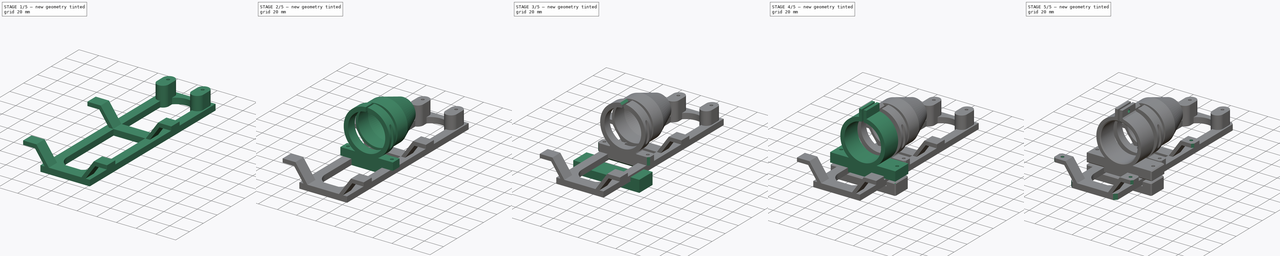
[diagram: build sequence overview — one tinted view per stage of 5, left to right]
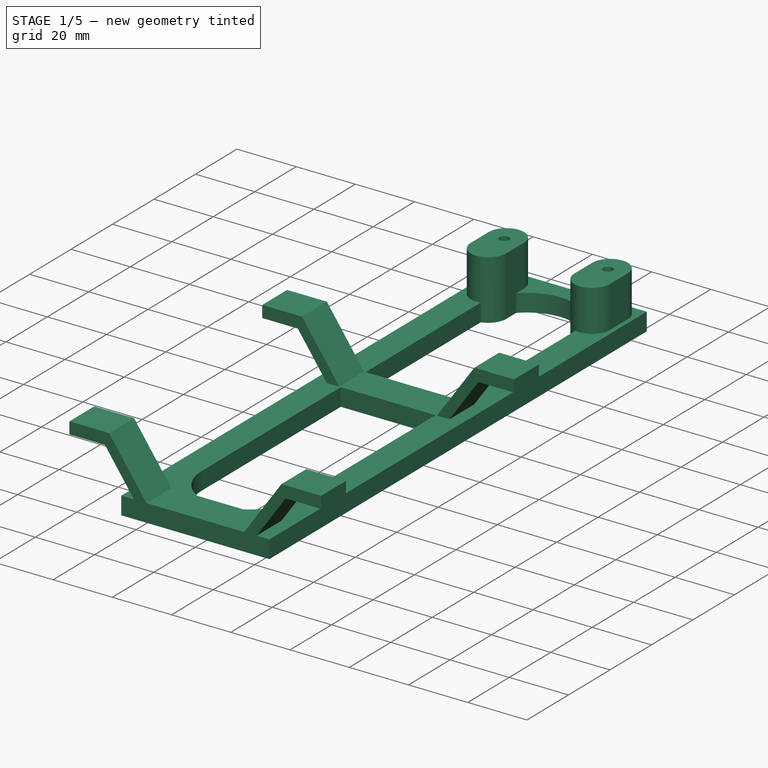
[diagram: stage 1 of 5 — iso view after this stage's code; geometry added in this stage tinted green]
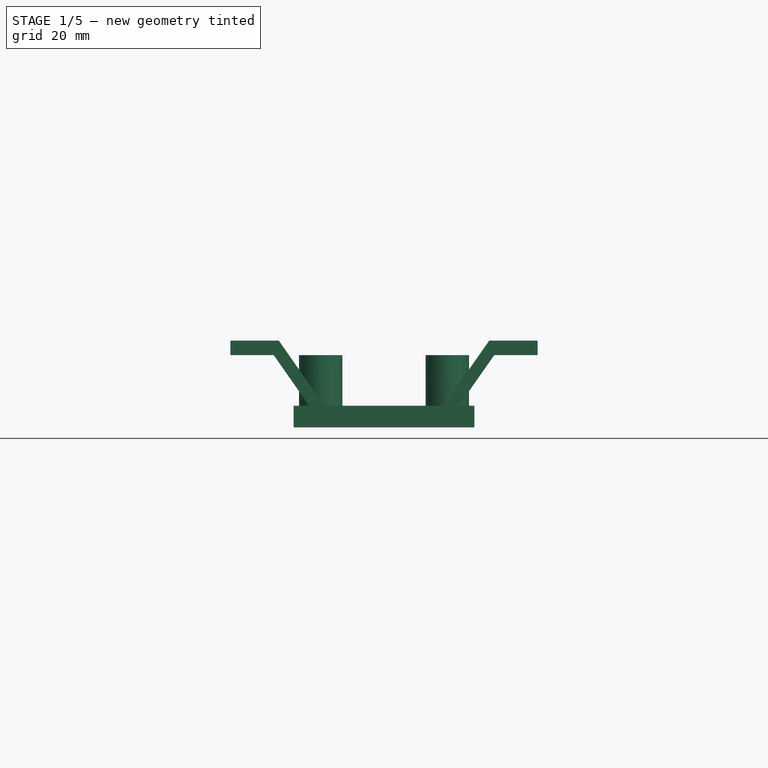
[diagram: stage 1 of 5 — front view after this stage's code; geometry added in this stage tinted green]
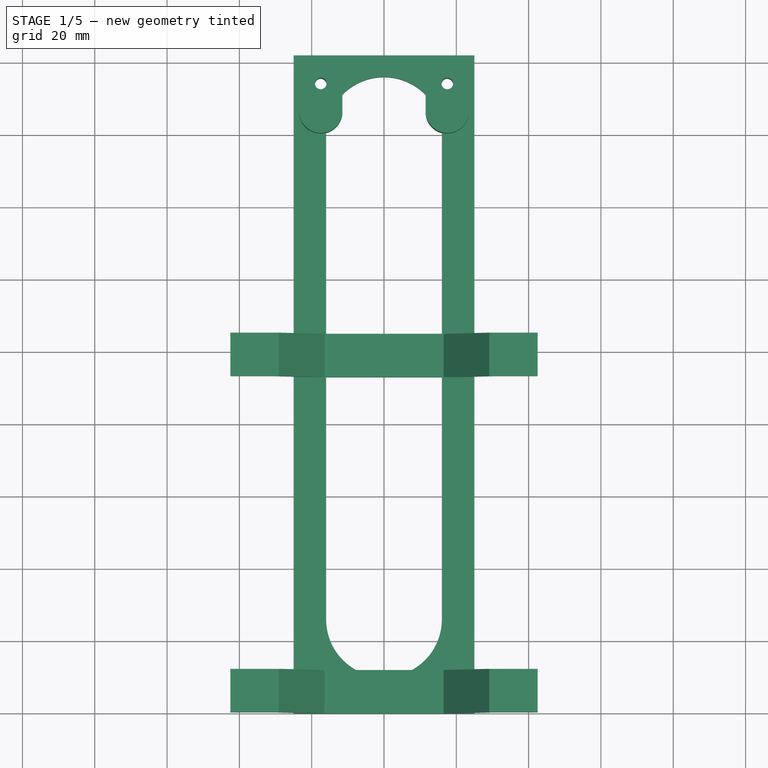
[diagram: stage 1 of 5 — top view after this stage's code; geometry added in this stage tinted green]
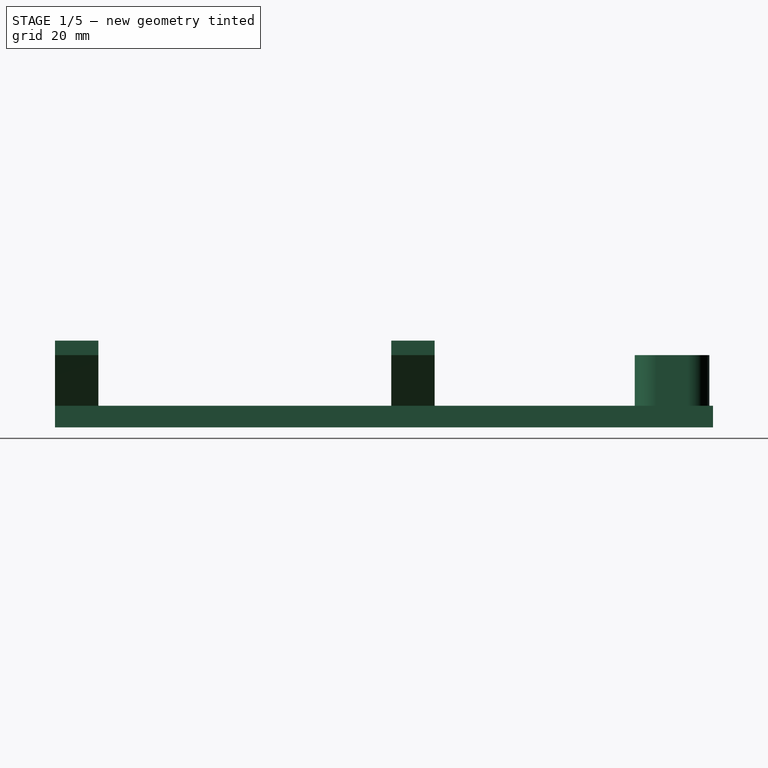
[diagram: stage 1 of 5 — right view after this stage's code; geometry added in this stage tinted green]
FCSTD DOCUMENT  (FreeCAD 2021.1015R24301 +4280 (Git))
Label: CameraMount-RaspPiAdvanced
License: All rights reserved
LicenseURL: http://en.wikipedia.org/wiki/All_rights_reserved
objects: Sketcher::SketchObject×21, PartDesign::Pad×11, PartDesign::Chamfer×6, PartDesign::Pocket×5, PartDesign::Hole×5, PartDesign::Body×5
note: 107 computed .brp shape members not serialized (recipe doc carries the construction recipe); baked Part::Feature solids carry a one-line shape summary decoded from their .brp

FEATURE [Sketcher::SketchObject] Sketch004
  FullyConstrained = true
  sketch-geometry (8):
    g0: LineSegment StartX=-25 StartY=-160 StartZ=0 EndX=-25 EndY=22 EndZ=0
    g1: LineSegment StartX=25 StartY=22 StartZ=0 EndX=25 EndY=-160 EndZ=0
    g2: LineSegment StartX=25 StartY=22 StartZ=0 EndX=-25 EndY=22 EndZ=0
    g3: LineSegment StartX=-25 StartY=-160 StartZ=0 EndX=25 EndY=-160 EndZ=0
    g4: ArcOfCircle CenterX=-3.878e-13 CenterY=-134 CenterZ=0 NormalX=0 NormalY=0 NormalZ=1 AngleXU=0 Radius=16 StartAngle=3.14159 EndAngle=6.28319
    g5: ArcOfCircle CenterX=0 CenterY=0 CenterZ=0 NormalX=0 NormalY=0 NormalZ=1 AngleXU=0 Radius=16 StartAngle=0 EndAngle=3.14159
    g6: LineSegment StartX=16 StartY=-134 StartZ=0 EndX=16 EndY=0 EndZ=0
    g7: LineSegment StartX=-16 StartY=-134 StartZ=0 EndX=-16 EndY=1.137e-13 EndZ=0
  constraints (20):
    c: Vertical(g0)
    c: Vertical(g1)
    c: DistanceX(g2,g2) = 50
    c: Coincident(g3,g0)
    c: Horizontal(g3)
    c: Tangent(g4,g7) = 1.5708
    c: Tangent(g4,g6) = -1.5708
    c: Tangent(g6,g5) = -1.5708
    c: Tangent(g7,g5) = 1.5708
    c: Vertical(g6)
    c: Equal(g4,g5)
    c: Coincident(g0,g2)
    c: Coincident(g1,g2)
    c: Symmetric(g1,g0,g-2)
    c: Coincident(g5,g-1)
    c: DistanceY(g5,g1) = 22
    c: DistanceX(g5,g5) = 32
    c: DistanceY(g0,g5) = 160
    c: Coincident(g1,g3)
    c: DistanceY(g0,g4) = 26
FEATURE [PartDesign::Pad] Pad003
  AddSubType = 0
  CheckUpToFaceLimits = true
  ClaimChildren = false
  Direction = (1,1,1)
  Fit = 0
  FitJoin = 0
  InnerFit = 0
  InnerFitJoin = 0
  InnerTaperAngle = 0
  InnerTaperAngleRev = 0
  Length = 6
  Length2 = 100
  Linearize = true
  NewSolid = false
  Profile = -> Sketch004
  Suppress = false
  Type = 0
  _ProfileBasedVersion = 1
FEATURE [Sketcher::SketchObject] Sketch015
  FullyConstrained = true
  sketch-geometry (14):
    g0: LineSegment [constr] StartX=-22 StartY=-55 StartZ=0 EndX=-22 EndY=19 EndZ=0
    g1: LineSegment [constr] StartX=22 StartY=19 StartZ=0 EndX=22 EndY=-55 EndZ=0
    g2: LineSegment [constr] StartX=22 StartY=19 StartZ=0 EndX=-22 EndY=19 EndZ=0
    g3: LineSegment [constr] StartX=-22 StartY=-55 StartZ=0 EndX=22 EndY=-55 EndZ=0
    g4: ArcOfCircle [constr] CenterX=-17.5 CenterY=14 CenterZ=0 NormalX=0 NormalY=0 NormalZ=1 AngleXU=0 Radius=1.65 StartAngle=0 EndAngle=3.14159
    g5: ArcOfCircle [constr] CenterX=-17.5 CenterY=-8 CenterZ=0 NormalX=0 NormalY=0 NormalZ=1 AngleXU=0 Radius=1.65 StartAngle=3.14159 EndAngle=6.28319
    g6: LineSegment [constr] StartX=-19.15 StartY=14 StartZ=0 EndX=-19.15 EndY=-8 EndZ=0
    g7: LineSegment [constr] StartX=-15.85 StartY=14 StartZ=0 EndX=-15.85 EndY=-8 EndZ=0
    g8: ArcOfCircle [constr] CenterX=17.5 CenterY=14 CenterZ=0 NormalX=0 NormalY=0 NormalZ=1 AngleXU=0 Radius=1.65 StartAngle=0 EndAngle=3.14159
    g9: ArcOfCircle [constr] CenterX=17.5 CenterY=-8 CenterZ=0 NormalX=0 NormalY=0 NormalZ=1 AngleXU=0 Radius=1.65 StartAngle=3.14159 EndAngle=6.28319
    g10: LineSegment [constr] StartX=15.85 StartY=14 StartZ=0 EndX=15.85 EndY=-8 EndZ=0
    g11: LineSegment [constr] StartX=19.15 StartY=14 StartZ=0 EndX=19.15 EndY=-8 EndZ=0
    g12: Circle CenterX=-17.5 CenterY=14 CenterZ=0 NormalX=0 NormalY=0 NormalZ=1 AngleXU=0 Radius=1.6
    g13: Circle CenterX=17.5 CenterY=14 CenterZ=0 NormalX=0 NormalY=0 NormalZ=1 AngleXU=0 Radius=1.6
  constraints (34):
    c: Vertical(g0)
    c: Vertical(g1)
    c: DistanceX(g2,g2) = 44
    c: Coincident(g3,g0)
    c: Coincident(g3,g1)
    c: Horizontal(g3)
    c: DistanceY(g0,g-1) = 55
    c: Tangent(g4,g7) = 1.5708
    c: Tangent(g4,g6) = -1.5708
    c: Tangent(g6,g5) = -1.5708
    c: Tangent(g7,g5) = 1.5708
    c: Equal(g4,g5)
    c: Tangent(g8,g11) = 1.5708
    c: Tangent(g8,g10) = -1.5708
    c: Tangent(g10,g9) = -1.5708
    c: Tangent(g11,g9) = 1.5708
    c: Equal(g8,g9)
    c: Equal(g4,g8)
    c: Horizontal(g8,g8)
    c: Horizontal(g8,g4)
    c: Symmetric(g4,g8,g-2)
    c: DistanceX(g4,g8) = 35
    c: DistanceX(g5,g5) = 3.3
    c: Horizontal(g5,g9)
    c: DistanceY(g5,g4) = 22
    c: Coincident(g0,g2)
    c: Coincident(g1,g2)
    c: Symmetric(g1,g0,g-2)
    c: DistanceY(g4,g0) = 5
    c: DistanceY(g-1,g1) = 19
    c: Coincident(g12,g4)
    c: Coincident(g13,g8)
    c: Equal(g12,g13)
    c: Diameter(g13) = 3.2
FEATURE [Sketcher::SketchObject] Sketch016
  FullyConstrained = false
  MapMode = 5
  Support = -> [XY_Plane002]
  sketch-geometry (8):
    g0: ArcOfCircle CenterX=-17.5 CenterY=15 CenterZ=0 NormalX=0 NormalY=0 NormalZ=1 AngleXU=0 Radius=6 StartAngle=0 EndAngle=3.14159
    g1: ArcOfCircle CenterX=-17.5 CenterY=6.3593 CenterZ=0 NormalX=0 NormalY=0 NormalZ=1 AngleXU=0 Radius=6 StartAngle=3.14159 EndAngle=6.28319
    g2: LineSegment StartX=-23.5 StartY=15 StartZ=0 EndX=-23.5 EndY=6.3593 EndZ=0
    g3: LineSegment StartX=-11.5 StartY=15 StartZ=0 EndX=-11.5 EndY=6.3593 EndZ=0
    g4: ArcOfCircle CenterX=17.5 CenterY=15 CenterZ=0 NormalX=0 NormalY=0 NormalZ=1 AngleXU=0 Radius=6 StartAngle=0 EndAngle=3.14159
    g5: ArcOfCircle CenterX=17.5 CenterY=6.3593 CenterZ=0 NormalX=0 NormalY=0 NormalZ=1 AngleXU=0 Radius=6 StartAngle=3.14159 EndAngle=6.28319
    g6: LineSegment StartX=11.5 StartY=15 StartZ=0 EndX=11.5 EndY=6.3593 EndZ=0
    g7: LineSegment StartX=23.5 StartY=15 StartZ=0 EndX=23.5 EndY=6.3593 EndZ=0
  constraints (18):
    c: Tangent(g0,g3) = 1.5708
    c: Tangent(g0,g2) = -1.5708
    c: Tangent(g2,g1) = -1.5708
    c: Tangent(g3,g1) = 1.5708
    c: Vertical(g2)
    c: Equal(g0,g1)
    c: Tangent(g4,g7) = 1.5708
    c: Tangent(g4,g6) = -1.5708
    c: Tangent(g6,g5) = -1.5708
    c: Tangent(g7,g5) = 1.5708
    c: Vertical(g6)
    c: Equal(g4,g5)
    c: Symmetric(g0,g4,g-2)
    c: DistanceX(g0,g4) = 35
    c: DistanceX(g1,g1) = 12
    c: Horizontal(g1,g5)
    c: DistanceY(g-1,g0) = 15
    c: Equal(g1,g5)
FEATURE [PartDesign::Pad] Pad010
  AddSubType = 0
  BaseFeature = -> Pad003
  CheckUpToFaceLimits = true
  ClaimChildren = false
  Direction = (1,1,1)
  Fit = 0
  FitJoin = 0
  InnerFit = 0
  InnerFitJoin = 0
  InnerTaperAngle = 0
  InnerTaperAngleRev = 0
  Length = 20
  Length2 = 2
  Linearize = true
  NewSolid = false
  Profile = -> Sketch016
  Suppress = false
  Type = 0
  _ProfileBasedVersion = 1
FEATURE [PartDesign::Pocket] Pocket
  AddSubType = 1
  BaseFeature = -> Pad010
  CheckUpToFaceLimits = true
  ClaimChildren = false
  Fit = 0
  FitJoin = 0
  InnerFit = 0
  InnerFitJoin = 0
  InnerTaperAngle = 0
  InnerTaperAngleRev = 0
  Length = 20
  Length2 = 100
  Linearize = true
  NewSolid = false
  Profile = -> Sketch015
  Reversed = true
  Suppress = false
  Type = 0
  _ProfileBasedVersion = 1
  _Version = 1
FEATURE [Sketcher::SketchObject] Sketch018  label="SupportArms"
  AttachmentOffset = pos=(0,0,148) rot=(0,0,1;0rad)
  FullyConstrained = true
  MapMode = 5
  Placement = pos=(0,-148,-3.29e-14) rot=(1,0,0;1.5708rad)
  Support = -> [XZ_Plane002]
  sketch-geometry (12):
    g0: LineSegment StartX=-16.5 StartY=0 StartZ=0 EndX=16.5 EndY=0 EndZ=0
    g1: LineSegment StartX=16.5 StartY=0 StartZ=0 EndX=30.5042 EndY=20 EndZ=0
    g2: LineSegment StartX=-16.5 StartY=6 StartZ=0 EndX=16.5 EndY=6 EndZ=0
    g3: LineSegment StartX=16.5 StartY=6 StartZ=0 EndX=29.1037 EndY=24 EndZ=0
    g4: LineSegment StartX=-16.5 StartY=6 StartZ=0 EndX=-29.1037 EndY=24 EndZ=0
    g5: LineSegment StartX=-29.1037 StartY=24 StartZ=0 EndX=-42.5042 EndY=24 EndZ=0
    g6: LineSegment StartX=-42.5042 StartY=24 StartZ=0 EndX=-42.5042 EndY=20 EndZ=0
    g7: LineSegment StartX=-42.5042 StartY=20 StartZ=0 EndX=-30.5042 EndY=20 EndZ=0
    g8: LineSegment StartX=-30.5042 StartY=20 StartZ=0 EndX=-16.5 EndY=0 EndZ=0
    g9: LineSegment StartX=30.5042 StartY=20 StartZ=0 EndX=42.5042 EndY=20 EndZ=0
    g10: LineSegment StartX=42.5042 StartY=20 StartZ=0 EndX=42.5042 EndY=24 EndZ=0
    g11: LineSegment StartX=42.5042 StartY=24 StartZ=0 EndX=29.1037 EndY=24 EndZ=0
  constraints (32):
    c: PointOnObject(g0,g-1)
    c: Coincident(g1,g0)
    c: Coincident(g3,g2)
    c: Coincident(g4,g2)
    c: Coincident(g5,g4)
    c: Horizontal(g5)
    c: Coincident(g6,g5)
    c: Vertical(g6)
    c: Coincident(g7,g6)
    c: Horizontal(g7)
    c: Coincident(g8,g7)
    c: Coincident(g8,g0)
    c: Coincident(g9,g1)
    c: Horizontal(g9)
    c: Coincident(g10,g9)
    c: Vertical(g10)
    c: Coincident(g11,g10)
    c: Coincident(g11,g3)
    c: Symmetric(g2,g2,g-2)
    c: DistanceX(g2,g2) = 33
    c: Symmetric(g0,g0,g-2)
    c: DistanceY(g6,g6) = 4
    c: Horizontal(g6,g9)
    c: Equal(g7,g9)
    c: Symmetric(g5,g10,g-2)
    c: Symmetric(g4,g3,g-2)
    c: DistanceX(g7,g7) = 12
    c: Angle(g0,g8) = 2.18166
    c: Parallel(g8,g4)
    c: Vertical(g0,g2)
    c: DistanceY(g0,g2) = 6
    c: DistanceY(g0,g1) = 20
FEATURE [PartDesign::Pad] Pad
  AddSubType = 0
  BaseFeature = -> Pocket
  CheckUpToFaceLimits = true
  ClaimChildren = false
  Direction = (1,1,1)
  Fit = 0
  FitJoin = 0
  InnerFit = 0
  InnerFitJoin = 0
  InnerTaperAngle = 0
  InnerTaperAngleRev = 0
  Length = 12
  Length2 = 100
  Linearize = true
  NewSolid = false
  Profile = -> Sketch018
  Suppress = false
  Type = 0
  _ProfileBasedVersion = 1
FEATURE [PartDesign::Body] Body004
  AutoGroupSolids = false
  ExportMode = 0
  Group = -> [Sketch027,Pad014,Sketch028,Hole004,Sketch029,Pocket003,Sketch033,Pocket004,Chamfer005]
  Origin = -> Origin004
  Tip = -> Chamfer005
  _ExportChildren = -> [Pad014,Hole004,Pocket003,Pocket004,Chamfer005]
  _GroupVersion = 1
FEATURE [Sketcher::SketchObject] Sketch034  label="SupportArms001"
  AttachmentOffset = pos=(0,0,55) rot=(0,0,1;0rad)
  FullyConstrained = true
  MapMode = 5
  Placement = pos=(0,-55,-1.22e-14) rot=(1,0,0;1.5708rad)
  Support = -> [XZ_Plane002]
  sketch-geometry (12):
    g0: LineSegment StartX=-16.5 StartY=0 StartZ=0 EndX=16.5 EndY=0 EndZ=0
    g1: LineSegment StartX=16.5 StartY=0 StartZ=0 EndX=30.5042 EndY=20 EndZ=0
    g2: LineSegment StartX=-16.5 StartY=6 StartZ=0 EndX=16.5 EndY=6 EndZ=0
    g3: LineSegment StartX=16.5 StartY=6 StartZ=0 EndX=29.1037 EndY=24 EndZ=0
    g4: LineSegment StartX=-16.5 StartY=6 StartZ=0 EndX=-29.1037 EndY=24 EndZ=0
    g5: LineSegment StartX=-29.1037 StartY=24 StartZ=0 EndX=-42.5042 EndY=24 EndZ=0
    g6: LineSegment StartX=-42.5042 StartY=24 StartZ=0 EndX=-42.5042 EndY=20 EndZ=0
    g7: LineSegment StartX=-42.5042 StartY=20 StartZ=0 EndX=-30.5042 EndY=20 EndZ=0
    g8: LineSegment StartX=-30.5042 StartY=20 StartZ=0 EndX=-16.5 EndY=0 EndZ=0
    g9: LineSegment StartX=30.5042 StartY=20 StartZ=0 EndX=42.5042 EndY=20 EndZ=0
    g10: LineSegment StartX=42.5042 StartY=20 StartZ=0 EndX=42.5042 EndY=24 EndZ=0
    g11: LineSegment StartX=42.5042 StartY=24 StartZ=0 EndX=29.1037 EndY=24 EndZ=0
  constraints (32):
    c: PointOnObject(g0,g-1)
    c: Coincident(g1,g0)
    c: Coincident(g3,g2)
    c: Coincident(g4,g2)
    c: Coincident(g5,g4)
    c: Horizontal(g5)
    c: Coincident(g6,g5)
    c: Vertical(g6)
    c: Coincident(g7,g6)
    c: Horizontal(g7)
    c: Coincident(g8,g7)
    c: Coincident(g8,g0)
    c: Coincident(g9,g1)
    c: Horizontal(g9)
    c: Coincident(g10,g9)
    c: Vertical(g10)
    c: Coincident(g11,g10)
    c: Coincident(g11,g3)
    c: Symmetric(g2,g2,g-2)
    c: DistanceX(g2,g2) = 33
    c: Symmetric(g0,g0,g-2)
    c: DistanceY(g6,g6) = 4
    c: Horizontal(g6,g9)
    c: Equal(g7,g9)
    c: Symmetric(g5,g10,g-2)
    c: Symmetric(g4,g3,g-2)
    c: DistanceX(g7,g7) = 12
    c: Angle(g0,g8) = 2.18166
    c: Parallel(g8,g4)
    c: Vertical(g0,g2)
    c: DistanceY(g0,g2) = 6
    c: DistanceY(g0,g1) = 20
FEATURE [PartDesign::Pad] Pad018
  AddSubType = 0
  BaseFeature = -> Pad
  CheckUpToFaceLimits = true
  ClaimChildren = false
  Direction = (1,1,1)
  Fit = 0
  FitJoin = 0
  InnerFit = 0
  InnerFitJoin = 0
  InnerTaperAngle = 0
  InnerTaperAngleRev = 0
  Length = 12
  Length2 = 100
  Linearize = true
  NewSolid = false
  Profile = -> Sketch034
  Suppress = false
  Type = 0
  _ProfileBasedVersion = 1
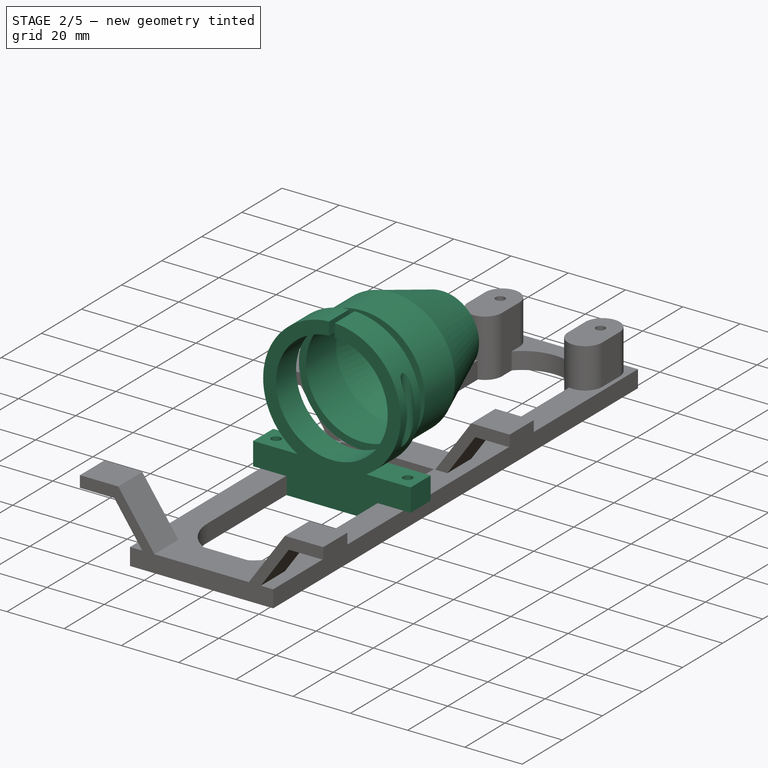
[diagram: stage 2 of 5 — iso view after this stage's code; geometry added in this stage tinted green]
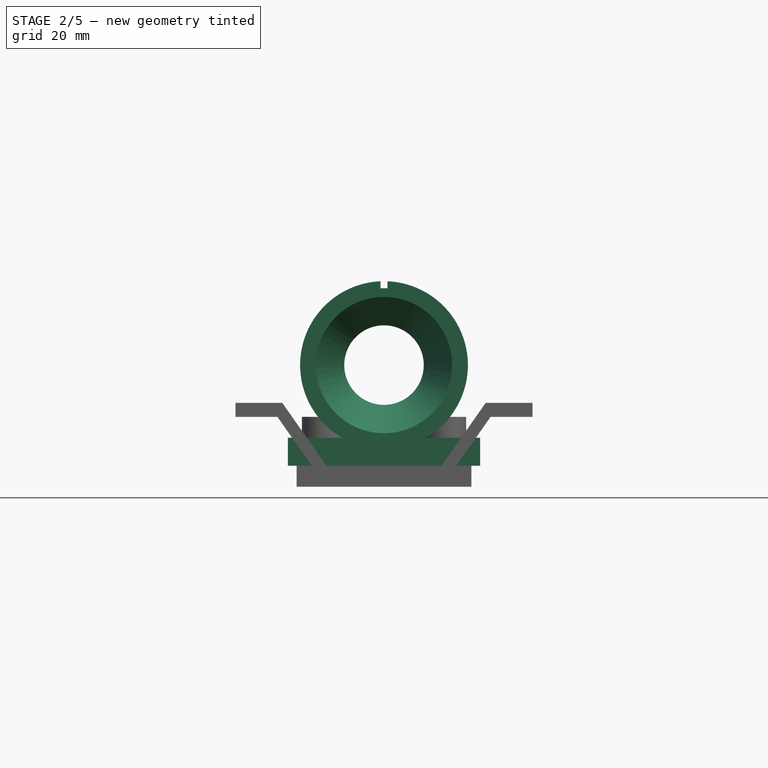
[diagram: stage 2 of 5 — front view after this stage's code; geometry added in this stage tinted green]
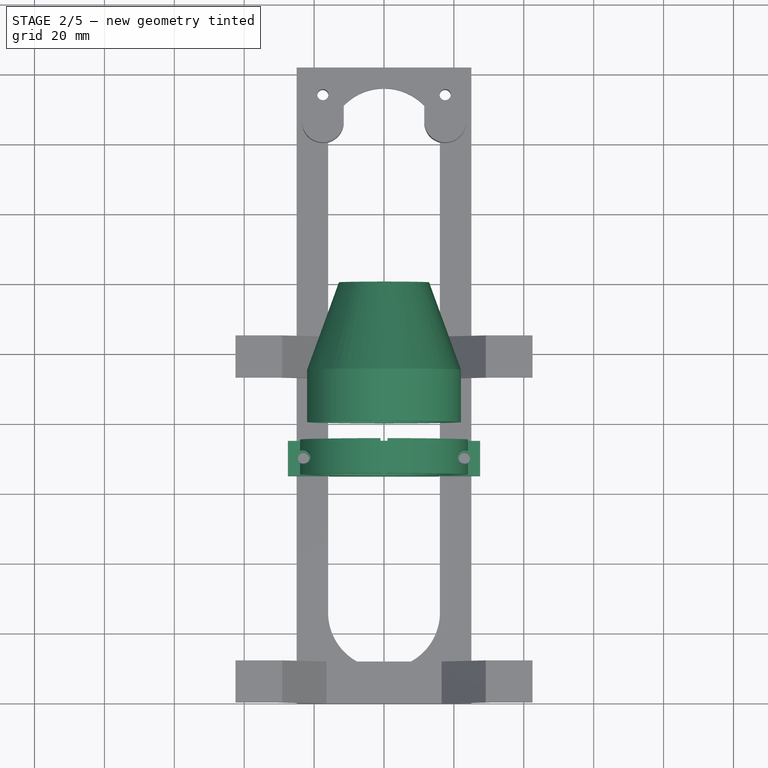
[diagram: stage 2 of 5 — top view after this stage's code; geometry added in this stage tinted green]
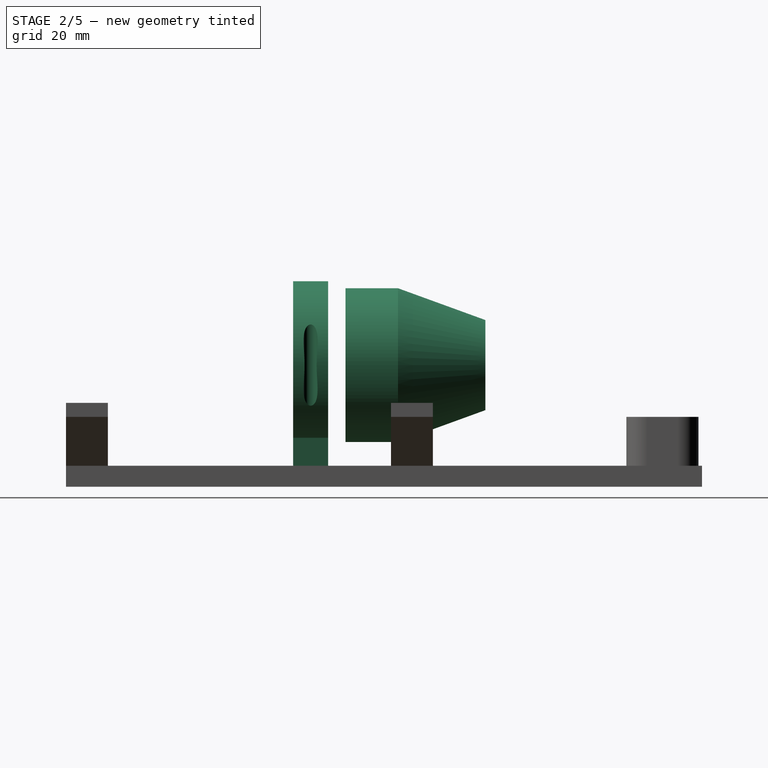
[diagram: stage 2 of 5 — right view after this stage's code; geometry added in this stage tinted green]
FEATURE [PartDesign::Body] Body003
  AutoGroupSolids = false
  ExportMode = 0
  Group = -> [Sketch023,Pad012,Sketch024,Pad013,Sketch025,Hole003,Sketch026,Pocket002,Chamfer004]
  Origin = -> Origin003
  Placement = pos=(0,-25,0) rot=(0,0,1;0rad)
  Tip = -> Chamfer004
  _ExportChildren = -> [Pad012,Pad013,Hole003,Pocket002,Chamfer004]
  _GroupVersion = 1
FEATURE [Sketcher::SketchObject] Sketch027
  AttachmentOffset = pos=(0,0,85) rot=(0,0,1;0rad)
  FullyConstrained = false
  MapMode = 5
  Placement = pos=(0,-85,-1.89e-14) rot=(1,0,0;1.5708rad)
  Support = -> [XZ_Plane004]
  sketch-geometry (13):
    g0: Circle CenterX=0 CenterY=34.8 CenterZ=0 NormalX=0 NormalY=0 NormalZ=1 AngleXU=0 Radius=19.5
    g1: Circle [constr] CenterX=0 CenterY=34.8 CenterZ=0 NormalX=0 NormalY=0 NormalZ=1 AngleXU=0 Radius=24
    g2: LineSegment [constr] StartX=-27.5 StartY=6 StartZ=0 EndX=27.5 EndY=6 EndZ=0
    g3: LineSegment StartX=-27.5 StartY=6 StartZ=0 EndX=-27.5 EndY=14 EndZ=0
    g4: LineSegment StartX=-27.5 StartY=14 StartZ=0 EndX=-11.9733 EndY=14 EndZ=0
    g5: LineSegment StartX=27.5 StartY=6 StartZ=0 EndX=27.5 EndY=14 EndZ=0
    g6: LineSegment StartX=27.5 StartY=14 StartZ=0 EndX=11.9733 EndY=14 EndZ=0
    g7: ArcOfCircle CenterX=0 CenterY=34.8 CenterZ=0 NormalX=0 NormalY=0 NormalZ=1 AngleXU=0 Radius=24 StartAngle=5.2347 EndAngle=10.4733
    g8: LineSegment StartX=15.75 StartY=6 StartZ=0 EndX=27.5 EndY=6 EndZ=0
    g9: LineSegment StartX=-15.75 StartY=6 StartZ=0 EndX=-27.5 EndY=6 EndZ=0
    g10: LineSegment StartX=-15.75 StartY=6 StartZ=0 EndX=-15.75 EndY=0 EndZ=0
    g11: LineSegment StartX=15.75 StartY=6 StartZ=0 EndX=15.75 EndY=0 EndZ=0
    g12: LineSegment StartX=15.75 StartY=0 StartZ=0 EndX=-15.75 EndY=0 EndZ=0
  constraints (34):
    c: PointOnObject(g0,g-2)
    c: Diameter(g0) = 39
    c: DistanceY(g-1,g0) = 34.8
    c: Coincident(g1,g0)
    c: Diameter(g1) = 48
    c: Symmetric(g2,g2,g-2)
    c: DistanceY(g-1,g2) = 6
    c: DistanceX(g2,g2) = 55
    c: Coincident(g3,g2)
    c: Vertical(g3)
    c: Coincident(g4,g3)
    c: PointOnObject(g4,g1)
    c: Horizontal(g4)
    c: Coincident(g5,g2)
    c: Vertical(g5)
    c: Coincident(g6,g5)
    c: Horizontal(g6)
    c: Horizontal(g6,g4)
    c: Coincident(g7,g0)
    c: Coincident(g7,g4)
    c: Coincident(g7,g6)
    c: PointOnObject(g9,g2)
    c: PointOnObject(g8,g2)
    c: Coincident(g8,g5)
    c: Coincident(g9,g3)
    c: Coincident(g10,g9)
    c: PointOnObject(g10,g-1)
    c: Vertical(g10)
    c: Coincident(g11,g8)
    c: Vertical(g11)
    c: Coincident(g12,g11)
    c: Coincident(g12,g10)
    c: Symmetric(g10,g11,g-2)
    c: DistanceX(g12,g12) = 31.5
FEATURE [PartDesign::Pad] Pad014
  AddSubType = 0
  CheckUpToFaceLimits = true
  ClaimChildren = false
  Direction = (1,1,1)
  Fit = 0
  FitJoin = 0
  InnerFit = 0
  InnerFitJoin = 0
  InnerTaperAngle = 0
  InnerTaperAngleRev = 0
  Length = 10
  Length2 = 100
  Linearize = true
  NewSolid = false
  Placement = pos=(0,0,0) rot=(1,0,0;1.5708rad)
  Profile = -> Sketch027
  Suppress = false
  Type = 0
  _ProfileBasedVersion = 1
FEATURE [Sketcher::SketchObject] Sketch028
  AttachmentOffset = pos=(0,0,50) rot=(0,0,1;0rad)
  FullyConstrained = true
  MapMode = 5
  Placement = pos=(0,0,50) rot=(0,0,1;0rad)
  Support = -> [XY_Plane004]
  sketch-geometry (2):
    g0: Circle CenterX=-23 CenterY=-90 CenterZ=0 NormalX=0 NormalY=0 NormalZ=1 AngleXU=0 Radius=1.75
    g1: Circle CenterX=23 CenterY=-90 CenterZ=0 NormalX=0 NormalY=0 NormalZ=1 AngleXU=0 Radius=1.75
  constraints (5):
    c: Symmetric(g0,g1,g-2)
    c: Equal(g1,g0)
    c: Diameter(g1) = 3.5
    c: DistanceY(g1,g-1) = 90
    c: DistanceX(g0,g1) = 46
FEATURE [PartDesign::Hole] Hole004
  AddSubType = 1
  BaseFeature = -> Pad014
  ClaimChildren = false
  CustomThreadClearance = 0
  Depth = 55
  DepthType = 0
  Diameter = 3.25
  DrillForDepth = false
  DrillPoint = 0
  DrillPointAngle = 118
  Fit = 0
  FitJoin = 0
  HoleCutCountersinkAngle = 90
  HoleCutCustomValues = false
  HoleCutDepth = 30
  HoleCutDiameter = 4
  HoleCutType = 1
  InnerFit = 0
  InnerFitJoin = 0
  ModelThread = false
  NewSolid = false
  Placement = pos=(0,0,0) rot=(1,0,0;1.5708rad)
  Profile = -> Sketch028
  Suppress = false
  Tapered = false
  TaperedAngle = 90
  ThreadClass = 0
  ThreadDepth = 55
  ThreadDepthType = 0
  ThreadDirection = 0
  ThreadFit = 0
  ThreadSize = 0
  ThreadType = 0
  Threaded = false
  UseCustomThreadClearance = false
  _ProfileBasedVersion = 1
FEATURE [Sketcher::SketchObject] Sketch029
  AttachmentOffset = pos=(0,0,6) rot=(0,0,1;0rad)
  FullyConstrained = true
  MapMode = 5
  Placement = pos=(0,0,6) rot=(0,0,1;0rad)
  Support = -> [XY_Plane004]
  sketch-geometry (14):
    g0: LineSegment StartX=-21.4123 StartY=-92.75 StartZ=0 EndX=-19.8246 EndY=-90 EndZ=0
    g1: LineSegment StartX=-19.8246 StartY=-90 StartZ=0 EndX=-21.4123 EndY=-87.25 EndZ=0
    g2: LineSegment StartX=-21.4123 StartY=-87.25 StartZ=0 EndX=-24.5877 EndY=-87.25 EndZ=0
    g3: LineSegment StartX=-24.5877 StartY=-87.25 StartZ=0 EndX=-26.1754 EndY=-90 EndZ=0
    g4: LineSegment StartX=-26.1754 StartY=-90 StartZ=0 EndX=-24.5877 EndY=-92.75 EndZ=0
    g5: LineSegment StartX=-24.5877 StartY=-92.75 StartZ=0 EndX=-21.4123 EndY=-92.75 EndZ=0
    g6: Circle [constr] CenterX=-23 CenterY=-90 CenterZ=0 NormalX=0 NormalY=0 NormalZ=1 AngleXU=0 Radius=3.17543
    g7: LineSegment StartX=24.5877 StartY=-92.75 StartZ=0 EndX=26.1754 EndY=-90 EndZ=0
    g8: LineSegment StartX=26.1754 StartY=-90 StartZ=0 EndX=24.5877 EndY=-87.25 EndZ=0
    g9: LineSegment StartX=24.5877 StartY=-87.25 StartZ=0 EndX=21.4123 EndY=-87.25 EndZ=0
    g10: LineSegment StartX=21.4123 StartY=-87.25 StartZ=0 EndX=19.8246 EndY=-90 EndZ=0
    g11: LineSegment StartX=19.8246 StartY=-90 StartZ=0 EndX=21.4123 EndY=-92.75 EndZ=0
    g12: LineSegment StartX=21.4123 StartY=-92.75 StartZ=0 EndX=24.5877 EndY=-92.75 EndZ=0
    g13: Circle [constr] CenterX=23 CenterY=-90 CenterZ=0 NormalX=0 NormalY=0 NormalZ=1 AngleXU=0 Radius=3.17543
  constraints (33):
    c: Coincident(g0,g1)
    c: Coincident(g1,g2)
    c: Coincident(g2,g3)
    c: Coincident(g3,g4)
    c: Coincident(g4,g5)
    c: Coincident(g5,g0)
    c: Equal(g0, g1-g5) x5
    c: PointOnObject(g0,g6)
    c: PointOnObject(g1,g6)
    c: PointOnObject(g2,g6)
    c: PointOnObject(g3,g6)
    c: PointOnObject(g4,g6)
    c: PointOnObject(g5,g6)
    c: Coincident(g7,g8)
    c: Coincident(g8,g9)
    c: Coincident(g9,g10)
    c: Coincident(g10,g11)
    c: Coincident(g11,g12)
    c: Coincident(g12,g7)
    c: Equal(g7, g8-g12) x5
    c: PointOnObject(g7,g13)
    c: PointOnObject(g8,g13)
    c: PointOnObject(g9,g13)
    c: PointOnObject(g10,g13)
    c: PointOnObject(g11,g13)
    c: PointOnObject(g12,g13)
    c: Symmetric(g6,g13,g-2)
    c: Horizontal(g9)
    c: Horizontal(g2)
    c: DistanceX(g6,g13) = 46
    c: DistanceY(g6,g-1) = 90
    c: Equal(g13,g6)
    c: Distance(g10,g8) = 5.5
FEATURE [PartDesign::Pocket] Pocket003
  AddSubType = 1
  BaseFeature = -> Hole004
  CheckUpToFaceLimits = true
  ClaimChildren = false
  Fit = 0
  FitJoin = 0
  InnerFit = 0
  InnerFitJoin = 0
  InnerTaperAngle = 0
  InnerTaperAngleRev = 0
  Length = 4
  Length2 = 100
  Linearize = true
  NewSolid = false
  Placement = pos=(0,0,0) rot=(1,0,0;1.5708rad)
  Profile = -> Sketch029
  Reversed = true
  Suppress = false
  Type = 0
  _ProfileBasedVersion = 1
  _Version = 1
FEATURE [Sketcher::SketchObject] Sketch030
  AttachmentOffset = pos=(0,0,65) rot=(0,0,1;0rad)
  FullyConstrained = true
  MapMode = 5
  Placement = pos=(0,-65,-1.44e-14) rot=(1,0,0;1.5708rad)
  Support = -> [XZ_Plane005]
  sketch-geometry (2):
    g0: Circle CenterX=0 CenterY=34.8 CenterZ=0 NormalX=0 NormalY=0 NormalZ=1 AngleXU=0 Radius=19.5
    g1: Circle CenterX=0 CenterY=34.8 CenterZ=0 NormalX=0 NormalY=0 NormalZ=1 AngleXU=0 Radius=22
  constraints (5):
    c: PointOnObject(g0,g-2)
    c: DistanceY(g-1,g0) = 34.8
    c: Diameter(g0) = 39
    c: Coincident(g1,g0)
    c: Diameter(g1) = 44
FEATURE [PartDesign::Pad] Pad015
  AddSubType = 0
  CheckUpToFaceLimits = true
  ClaimChildren = false
  Direction = (1,1,1)
  Fit = 0
  FitJoin = 0
  InnerFit = 0
  InnerFitJoin = 0
  InnerTaperAngle = -18
  InnerTaperAngleRev = 0
  Length = 25
  Length2 = 100
  Linearize = true
  NewSolid = false
  Placement = pos=(0,0,0) rot=(1,0,0;1.5708rad)
  Profile = -> Sketch030
  Reversed = true
  Suppress = false
  TaperAngle = -20
  Type = 0
  _ProfileBasedVersion = 1
FEATURE [Sketcher::SketchObject] Sketch031
  AttachmentOffset = pos=(0,0,80) rot=(0,0,1;0rad)
  FullyConstrained = true
  MapMode = 5
  Placement = pos=(0,-80,-1.78e-14) rot=(1,0,0;1.5708rad)
  Support = -> [XZ_Plane005]
  sketch-geometry (2):
    g0: Circle CenterX=0 CenterY=34.8 CenterZ=0 NormalX=0 NormalY=0 NormalZ=1 AngleXU=0 Radius=19.5
    g1: Circle CenterX=0 CenterY=34.8 CenterZ=0 NormalX=0 NormalY=0 NormalZ=1 AngleXU=0 Radius=22
  constraints (5):
    c: PointOnObject(g0,g-2)
    c: DistanceY(g-1,g0) = 34.8
    c: Diameter(g0) = 39
    c: Coincident(g1,g0)
    c: Diameter(g1) = 44
FEATURE [PartDesign::Pad] Pad016
  AddSubType = 0
  BaseFeature = -> Pad015
  CheckUpToFaceLimits = true
  ClaimChildren = false
  Direction = (1,1,1)
  Fit = 0
  FitJoin = 0
  InnerFit = 0
  InnerFitJoin = 0
  InnerTaperAngle = 0
  InnerTaperAngleRev = 0
  Length = 15
  Length2 = 100
  Linearize = true
  NewSolid = false
  Placement = pos=(0,0,0) rot=(1,0,0;1.5708rad)
  Profile = -> Sketch031
  Reversed = true
  Suppress = false
  Type = 0
  _ProfileBasedVersion = 1
FEATURE [PartDesign::Body] Body005
  AutoGroupSolids = false
  ExportMode = 0
  Group = -> [Sketch030,Pad015,Sketch031,Pad016,Sketch032,Pad017,Chamfer006]
  Origin = -> Origin005
  Tip = -> Chamfer006
  _ExportChildren = -> [Pad015,Pad016,Pad017,Chamfer006]
  _GroupVersion = 1
FEATURE [Sketcher::SketchObject] Sketch033
  AttachmentOffset = pos=(0,0,84) rot=(0,0,1;0rad)
  FullyConstrained = true
  MapMode = 5
  Placement = pos=(0,-84,-1.87e-14) rot=(1,0,0;1.5708rad)
  Support = -> [XZ_Plane004]
  sketch-geometry (4):
    g0: LineSegment StartX=-1 StartY=62 StartZ=0 EndX=1 EndY=62 EndZ=0
    g1: LineSegment StartX=1 StartY=62 StartZ=0 EndX=1 EndY=52 EndZ=0
    g2: LineSegment StartX=1 StartY=52 StartZ=0 EndX=-1 EndY=52 EndZ=0
    g3: LineSegment StartX=-1 StartY=52 StartZ=0 EndX=-1 EndY=62 EndZ=0
  constraints (11):
    c: Coincident(g0,g1)
    c: Coincident(g1,g2)
    c: Coincident(g2,g3)
    c: Coincident(g3,g0)
    c: Horizontal(g0)
    c: Vertical(g1)
    c: Vertical(g3)
    c: Symmetric(g2,g1,g-2)
    c: DistanceX(g0,g0) = 2
    c: DistanceY(g-1,g1) = 52
    c: DistanceY(g1,g1) = 10
FEATURE [PartDesign::Pocket] Pocket004
  AddSubType = 1
  BaseFeature = -> Pocket003
  CheckUpToFaceLimits = true
  ClaimChildren = false
  Fit = 0
  FitJoin = 0
  InnerFit = 0
  InnerFitJoin = 0
  InnerTaperAngle = 0
  InnerTaperAngleRev = 0
  Length = 12
  Length2 = 100
  Linearize = true
  NewSolid = false
  Placement = pos=(0,0,0) rot=(1,0,0;1.5708rad)
  Profile = -> Sketch033
  Reversed = true
  Suppress = false
  Type = 0
  _ProfileBasedVersion = 1
  _Version = 1
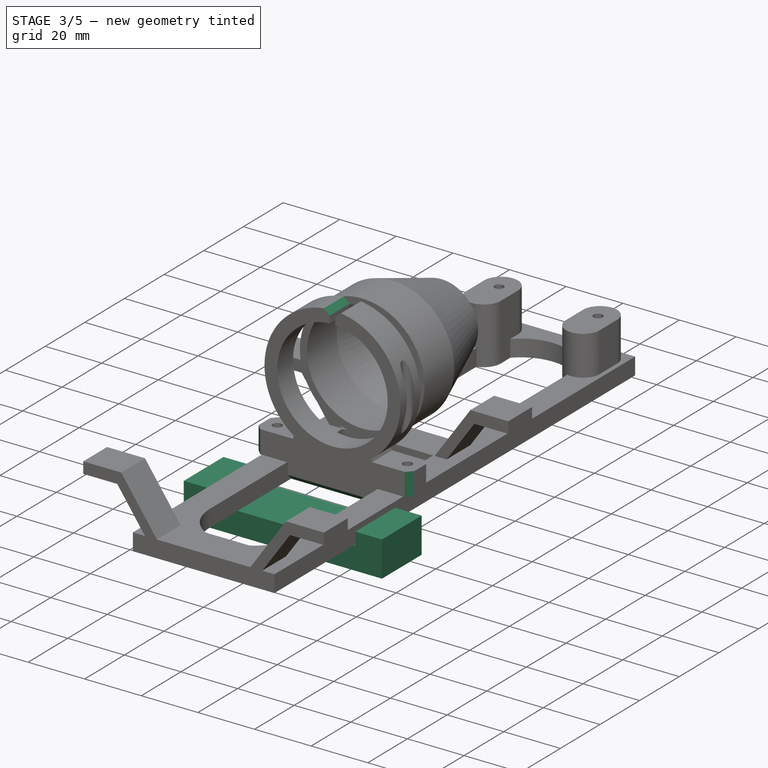
[diagram: stage 3 of 5 — iso view after this stage's code; geometry added in this stage tinted green]
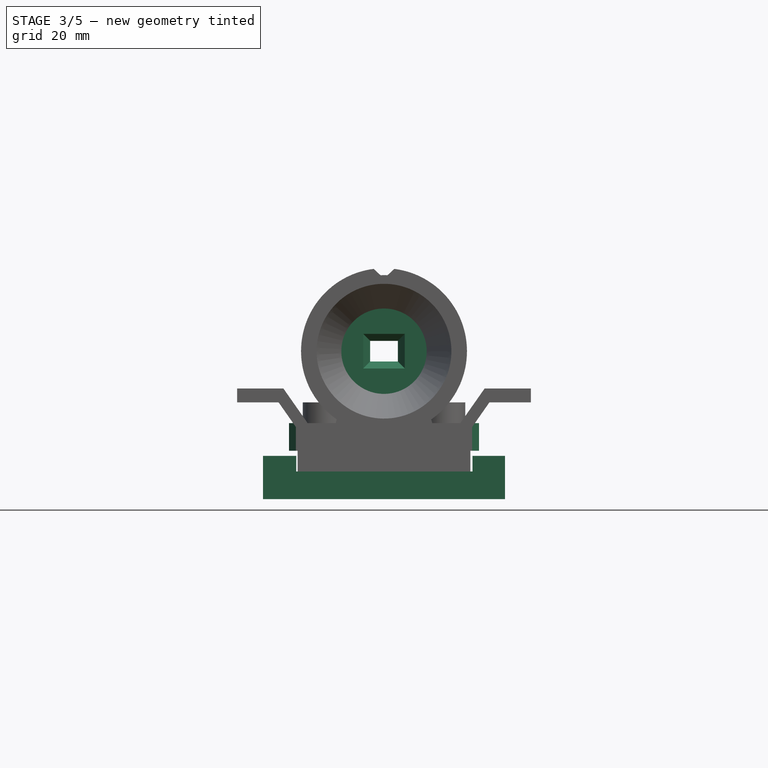
[diagram: stage 3 of 5 — front view after this stage's code; geometry added in this stage tinted green]
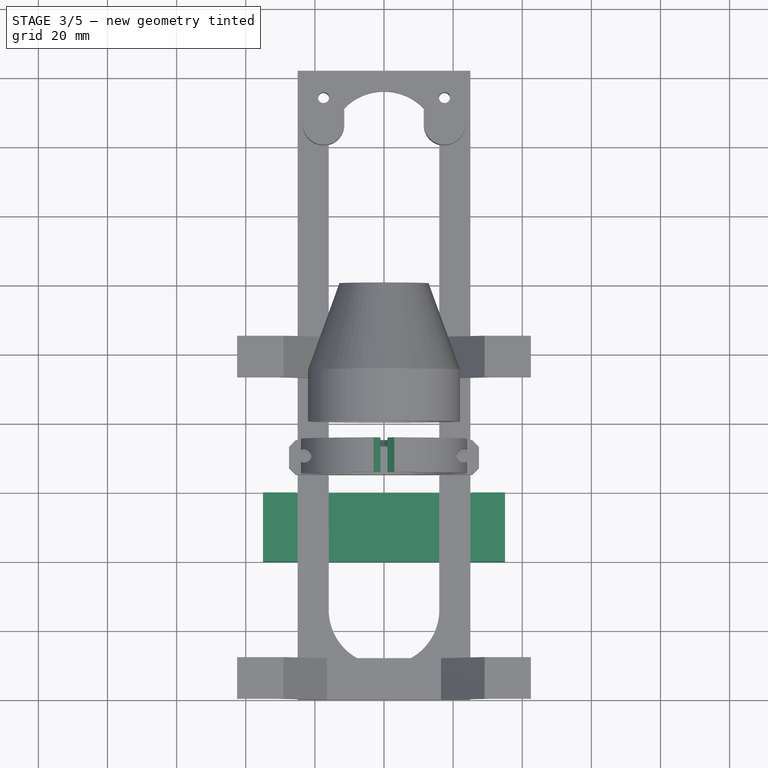
[diagram: stage 3 of 5 — top view after this stage's code; geometry added in this stage tinted green]
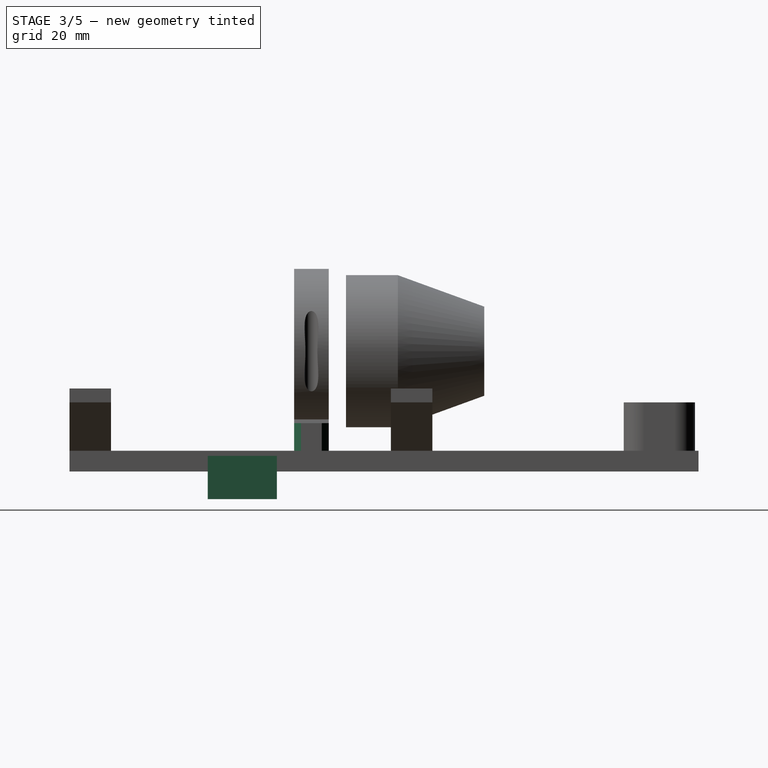
[diagram: stage 3 of 5 — right view after this stage's code; geometry added in this stage tinted green]
FEATURE [PartDesign::Body] Body
  AutoGroupSolids = false
  ExportMode = 0
  Group = -> [Sketch,Pad011,Sketch020,Pocket001,Sketch021,Hole001,Sketch022,Hole002,Chamfer003]
  Origin = -> Origin
  Placement = pos=(0,-25,0) rot=(0,0,1;0rad)
  Tip = -> Chamfer003
  _ExportChildren = -> [Pad011,Pocket001,Hole001,Hole002,Chamfer003]
  _GroupVersion = 1
FEATURE [Sketcher::SketchObject] Sketch023
  FullyConstrained = true
  MapMode = 5
  Support = -> [XY_Plane003]
  sketch-geometry (4):
    g0: LineSegment StartX=-35 StartY=-100 StartZ=0 EndX=35 EndY=-100 EndZ=0
    g1: LineSegment StartX=35 StartY=-100 StartZ=0 EndX=35 EndY=-120 EndZ=0
    g2: LineSegment StartX=35 StartY=-120 StartZ=0 EndX=-35 EndY=-120 EndZ=0
    g3: LineSegment StartX=-35 StartY=-120 StartZ=0 EndX=-35 EndY=-100 EndZ=0
  constraints (11):
    c: Coincident(g0,g1)
    c: Coincident(g1,g2)
    c: Coincident(g2,g3)
    c: Coincident(g3,g0)
    c: Horizontal(g2)
    c: Vertical(g1)
    c: Vertical(g3)
    c: Symmetric(g0,g0,g-2)
    c: DistanceX(g0,g0) = 70
    c: DistanceY(g1,g1) = 20
    c: DistanceY(g0,g-1) = 100
FEATURE [PartDesign::Pad] Pad012
  AddSubType = 0
  CheckUpToFaceLimits = true
  ClaimChildren = false
  Direction = (1,1,1)
  Fit = 0
  FitJoin = 0
  InnerFit = 0
  InnerFitJoin = 0
  InnerTaperAngle = 0
  InnerTaperAngleRev = 0
  Length = 8
  Length2 = 100
  Linearize = true
  NewSolid = false
  Profile = -> Sketch023
  Reversed = true
  Suppress = false
  Type = 0
  _ProfileBasedVersion = 1
FEATURE [Sketcher::SketchObject] Sketch024
  AttachmentOffset = pos=(0,0,-8) rot=(0,0,1;0rad)
  FullyConstrained = true
  MapMode = 5
  Placement = pos=(0,0,-8) rot=(0,0,1;0rad)
  Support = -> [XY_Plane003]
  sketch-geometry (8):
    g0: LineSegment StartX=-35 StartY=-100 StartZ=0 EndX=-25.4 EndY=-100 EndZ=0
    g1: LineSegment StartX=-25.4 StartY=-100 StartZ=0 EndX=-25.4 EndY=-120 EndZ=0
    g2: LineSegment StartX=-25.4 StartY=-120 StartZ=0 EndX=-35 EndY=-120 EndZ=0
    g3: LineSegment StartX=-35 StartY=-120 StartZ=0 EndX=-35 EndY=-100 EndZ=0
    g4: LineSegment StartX=25.6 StartY=-100 StartZ=0 EndX=35 EndY=-100 EndZ=0
    g5: LineSegment StartX=35 StartY=-100 StartZ=0 EndX=35 EndY=-120 EndZ=0
    g6: LineSegment StartX=35 StartY=-120 StartZ=0 EndX=25.6 EndY=-120 EndZ=0
    g7: LineSegment StartX=25.6 StartY=-120 StartZ=0 EndX=25.6 EndY=-100 EndZ=0
  constraints (23):
    c: Coincident(g0,g1)
    c: Coincident(g1,g2)
    c: Coincident(g2,g3)
    c: Coincident(g3,g0)
    c: Horizontal(g0)
    c: Horizontal(g2)
    c: Vertical(g1)
    c: Vertical(g3)
    c: Coincident(g4,g5)
    c: Coincident(g5,g6)
    c: Coincident(g6,g7)
    c: Coincident(g7,g4)
    c: Horizontal(g4)
    c: Horizontal(g6)
    c: Vertical(g5)
    c: Vertical(g7)
    c: Horizontal(g1,g6)
    c: DistanceY(g5,g5) = 20
    c: DistanceX(g0,g4) = 70
    c: DistanceX(g0,g4) = 51
    c: DistanceY(g0,g-1) = 100
    c: DistanceX(g2,g2) = 9.6
    c: Symmetric(g0,g4,g-2)
FEATURE [PartDesign::Pad] Pad013
  AddSubType = 0
  BaseFeature = -> Pad012
  CheckUpToFaceLimits = true
  ClaimChildren = false
  Direction = (1,1,1)
  Fit = 0
  FitJoin = 0
  InnerFit = 0
  InnerFitJoin = 0
  InnerTaperAngle = 0
  InnerTaperAngleRev = 0
  Length = 12.5
  Length2 = 100
  Linearize = true
  NewSolid = false
  Profile = -> Sketch024
  Suppress = false
  Type = 0
  _ProfileBasedVersion = 1
FEATURE [Sketcher::SketchObject] Sketch032
  AttachmentOffset = pos=(0,0,43) rot=(0,0,1;0rad)
  FullyConstrained = true
  MapMode = 5
  Placement = pos=(0,-43,-9.5e-15) rot=(1,0,0;1.5708rad)
  Support = -> [XZ_Plane005]
  sketch-geometry (6):
    g0: LineSegment StartX=-4 StartY=37.8 StartZ=0 EndX=4 EndY=37.8 EndZ=0
    g1: LineSegment StartX=4 StartY=37.8 StartZ=0 EndX=4 EndY=31.8 EndZ=0
    g2: LineSegment StartX=4 StartY=31.8 StartZ=0 EndX=-4 EndY=31.8 EndZ=0
    g3: LineSegment StartX=-4 StartY=31.8 StartZ=0 EndX=-4 EndY=37.8 EndZ=0
    g4: GeomPoint [constr] X=-1.2e-15 Y=34.8 Z=0
    g5: Circle CenterX=-1.2e-15 CenterY=34.8 CenterZ=0 NormalX=0 NormalY=0 NormalZ=1 AngleXU=0 Radius=12.5
  constraints (14):
    c: Coincident(g0,g1)
    c: Coincident(g1,g2)
    c: Coincident(g2,g3)
    c: Coincident(g3,g0)
    c: Horizontal(g0)
    c: Vertical(g1)
    c: Vertical(g3)
    c: Symmetric(g2,g1,g-2)
    c: DistanceX(g0,g0) = 8
    c: DistanceY(g-1,g4) = 34.8
    c: Symmetric(g1,g0,g4)
    c: Coincident(g5,g4)
    c: Diameter(g5) = 25
    c: DistanceY(g1,g1) = 6
FEATURE [PartDesign::Pad] Pad017
  AddSubType = 0
  BaseFeature = -> Pad016
  CheckUpToFaceLimits = true
  ClaimChildren = false
  Direction = (1,1,1)
  Fit = 0
  FitJoin = 0
  InnerFit = 0
  InnerFitJoin = 0
  InnerTaperAngle = 0
  InnerTaperAngleRev = 0
  Length = 3
  Length2 = 100
  Linearize = true
  NewSolid = false
  Placement = pos=(0,0,0) rot=(1,0,0;1.5708rad)
  Profile = -> Sketch032
  Reversed = true
  Suppress = false
  Type = 0
  _ProfileBasedVersion = 1
FEATURE [PartDesign::Chamfer] Chamfer006
  AddSubType = 0
  Angle = 45
  Base = -> Pad017 [Edge23,Edge24,Edge19,Edge21]
  BaseFeature = -> Pad017
  ChamferType = 0
  FlipDirection = false
  NewSolid = false
  Placement = pos=(0,0,0) rot=(1,0,0;1.5708rad)
  Size = 2
  Size2 = 1
  SupportTransform = false
  Suppress = false
FEATURE [PartDesign::Chamfer] Chamfer005
  AddSubType = 0
  Angle = 45
  Base = -> Pocket004 [Edge17,Edge26,Edge14,Edge21,Edge22,Edge63,Edge72,Edge30,Edge39,Edge27,Edge71,Edge65]
  BaseFeature = -> Pocket004
  ChamferType = 0
  FlipDirection = false
  NewSolid = false
  Placement = pos=(0,0,0) rot=(1,0,0;1.5708rad)
  Size = 2
  Size2 = 1
  SupportTransform = false
  Suppress = false
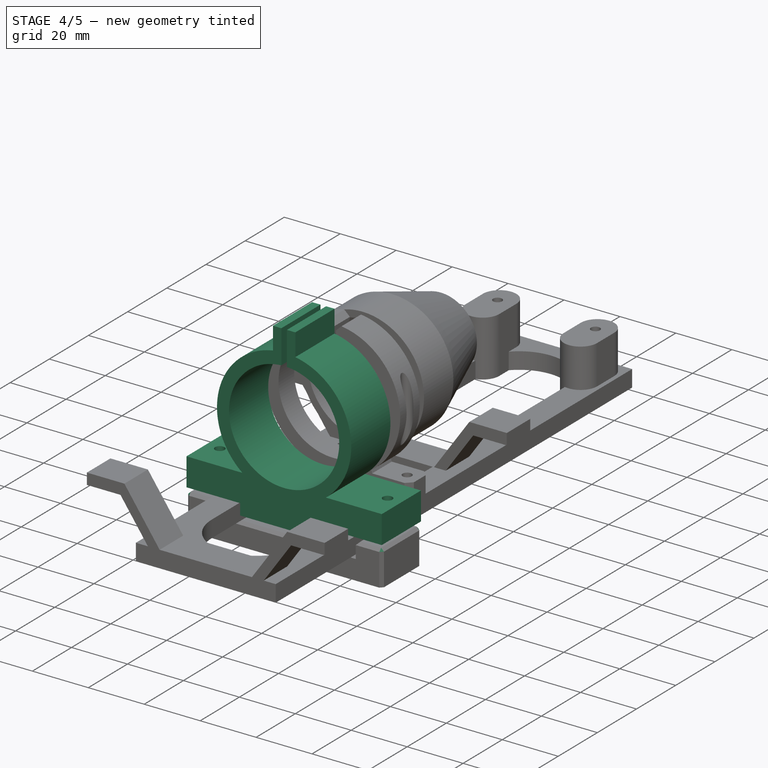
[diagram: stage 4 of 5 — iso view after this stage's code; geometry added in this stage tinted green]
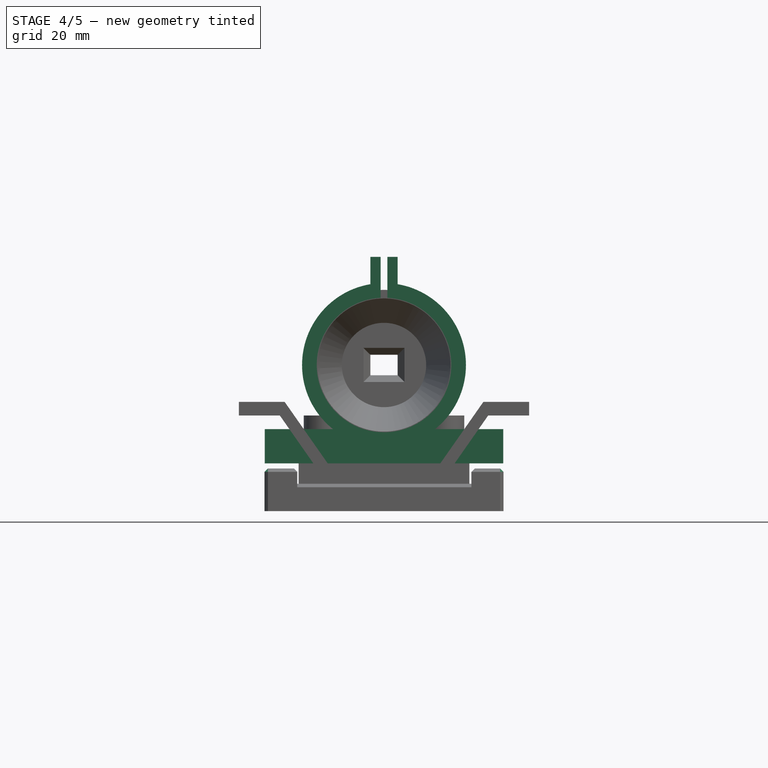
[diagram: stage 4 of 5 — front view after this stage's code; geometry added in this stage tinted green]
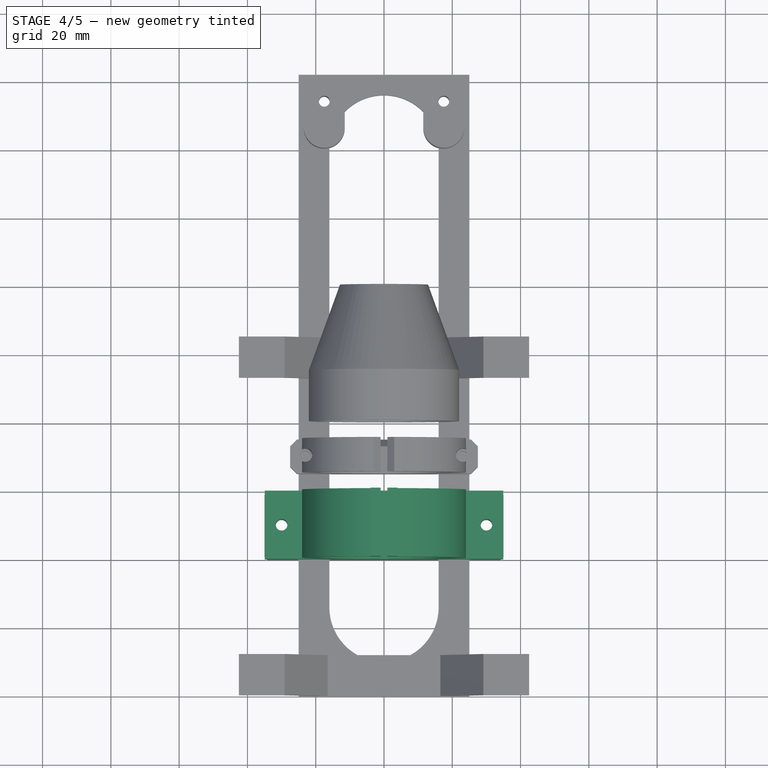
[diagram: stage 4 of 5 — top view after this stage's code; geometry added in this stage tinted green]
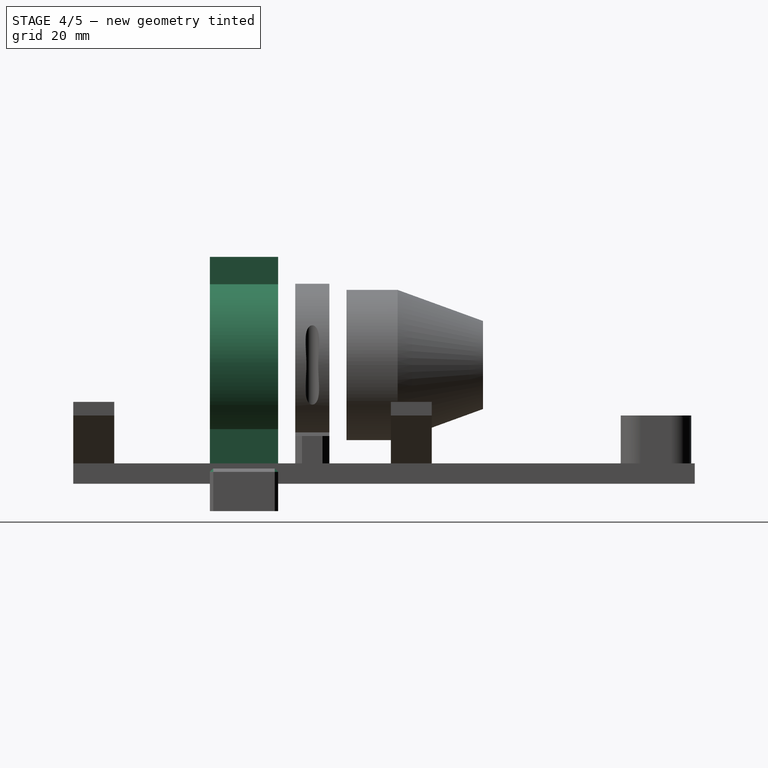
[diagram: stage 4 of 5 — right view after this stage's code; geometry added in this stage tinted green]
FEATURE [Sketcher::SketchObject] Sketch019
  FullyConstrained = true
  MapMode = 5
  Support = -> [XY_Plane002]
  sketch-geometry (4):
    g0: Circle CenterX=-36.5 CenterY=-154 CenterZ=0 NormalX=0 NormalY=0 NormalZ=1 AngleXU=0 Radius=1.5
    g1: Circle CenterX=36.5 CenterY=-154 CenterZ=0 NormalX=0 NormalY=0 NormalZ=1 AngleXU=0 Radius=1.5
    g2: Circle CenterX=-36.5 CenterY=-61 CenterZ=0 NormalX=0 NormalY=0 NormalZ=1 AngleXU=0 Radius=1.5
    g3: Circle CenterX=36.5 CenterY=-61 CenterZ=0 NormalX=0 NormalY=0 NormalZ=1 AngleXU=0 Radius=1.5
  constraints (10):
    c: Symmetric(g0,g1,g-2)
    c: Diameter(g1) = 3
    c: Equal(g1,g0)
    c: DistanceY(g1,g-1) = 154
    c: DistanceX(g0,g1) = 73
    c: Symmetric(g2,g3,g-2)
    c: Equal(g3,g2)
    c: Equal(g2,g1)
    c: Vertical(g1,g3)
    c: DistanceY(g2,g-1) = 61
FEATURE [Sketcher::SketchObject] Sketch
  AttachmentOffset = pos=(0,0,100) rot=(0,0,1;0rad)
  FullyConstrained = true
  MapMode = 5
  Placement = pos=(0,-100,-2.22e-14) rot=(1,0,0;1.5708rad)
  Support = -> [XZ_Plane]
  sketch-geometry (18):
    g0: Circle CenterX=0 CenterY=34.8 CenterZ=0 NormalX=0 NormalY=0 NormalZ=1 AngleXU=0 Radius=19.7
    g1: Circle [constr] CenterX=0 CenterY=34.8 CenterZ=0 NormalX=0 NormalY=0 NormalZ=1 AngleXU=0 Radius=24
    g2: GeomPoint [constr] X=0 Y=15.1 Z=0
    g3: GeomPoint [constr] X=0 Y=54.5 Z=0
    g4: LineSegment StartX=-34.9184 StartY=6 StartZ=0 EndX=-34.9184 EndY=16 EndZ=0
    g5: LineSegment StartX=34.9184 StartY=6 StartZ=0 EndX=34.9184 EndY=16 EndZ=0
    g6: LineSegment StartX=-34.9184 StartY=16 StartZ=0 EndX=-14.9184 EndY=16 EndZ=0
    g7: LineSegment StartX=34.9184 StartY=16 StartZ=0 EndX=14.9184 EndY=16 EndZ=0
    g8: LineSegment StartX=-4 StartY=58.4643 StartZ=0 EndX=-4 EndY=66.4643 EndZ=0
    g9: LineSegment StartX=4 StartY=58.4643 StartZ=0 EndX=4 EndY=66.4643 EndZ=0
    g10: LineSegment StartX=-4 StartY=66.4643 StartZ=0 EndX=4 EndY=66.4643 EndZ=0
    g11: ArcOfCircle CenterX=0 CenterY=34.8 CenterZ=0 NormalX=0 NormalY=0 NormalZ=1 AngleXU=0 Radius=24 StartAngle=1.73824 EndAngle=4.0416
    g12: ArcOfCircle CenterX=0 CenterY=34.8 CenterZ=0 NormalX=0 NormalY=0 NormalZ=1 AngleXU=0 Radius=24 StartAngle=5.38317 EndAngle=7.68653
    g13: LineSegment StartX=-15.75 StartY=6 StartZ=0 EndX=-34.9184 EndY=6 EndZ=0
    g14: LineSegment StartX=15.75 StartY=6 StartZ=0 EndX=34.9184 EndY=6 EndZ=0
    g15: LineSegment StartX=-15.75 StartY=6 StartZ=0 EndX=-15.75 EndY=2 EndZ=0
    g16: LineSegment StartX=-15.75 StartY=2 StartZ=0 EndX=15.75 EndY=2 EndZ=0
    g17: LineSegment StartX=15.75 StartY=2 StartZ=0 EndX=15.75 EndY=6 EndZ=0
  constraints (48):
    c: PointOnObject(g0,g-2)
    c: Coincident(g1,g0)
    c: Diameter(g0) = 39.4
    c: Diameter(g1) = 48
    c: PointOnObject(g2,g0)
    c: Vertical(g2,g0)
    c: PointOnObject(g3,g0)
    c: Vertical(g3,g0)
    c: DistanceY(g-1,g3) = 54.5
    c: Symmetric(g4,g5,g-2)
    c: DistanceY(g-1,g5) = 6
    c: Vertical(g4)
    c: Vertical(g5)
    c: Horizontal(g4,g5)
    c: Coincident(g6,g4)
    c: PointOnObject(g6,g1)
    c: Horizontal(g6)
    c: Coincident(g7,g5)
    c: Horizontal(g7)
    c: DistanceX(g7,g7) = 20
    c: DistanceY(g5,g5) = 10
    c: Vertical(g8)
    c: PointOnObject(g9,g1)
    c: Vertical(g9)
    c: Coincident(g10,g8)
    c: Coincident(g10,g9)
    c: DistanceX(g10,g10) = 8
    c: Symmetric(g8,g9,g-2)
    c: Coincident(g11,g0)
    c: Coincident(g11,g8)
    c: Coincident(g11,g6)
    c: Coincident(g12,g0)
    c: Coincident(g12,g7)
    c: Coincident(g12,g9)
    c: Coincident(g13,g4)
    c: Horizontal(g13)
    c: Coincident(g14,g5)
    c: Horizontal(g14)
    c: DistanceY(g9,g9) = 8
    c: Coincident(g15,g13)
    c: Coincident(g16,g15)
    c: Coincident(g17,g16)
    c: Coincident(g17,g14)
    c: Vertical(g17)
    c: Vertical(g15)
    c: Symmetric(g15,g16,g-2)
    c: DistanceX(g16,g16) = 31.5
    c: DistanceY(g17,g17) = 4
FEATURE [PartDesign::Pad] Pad011
  AddSubType = 0
  CheckUpToFaceLimits = true
  ClaimChildren = false
  Direction = (1,1,1)
  Fit = 0
  FitJoin = 0
  InnerFit = 0
  InnerFitJoin = 0
  InnerTaperAngle = 0
  InnerTaperAngleRev = 0
  Length = 20
  Length2 = 100
  Linearize = true
  NewSolid = false
  Placement = pos=(0,0,0) rot=(1,0,0;1.5708rad)
  Profile = -> Sketch
  Suppress = false
  Type = 0
  _ProfileBasedVersion = 1
FEATURE [Sketcher::SketchObject] Sketch020
  AttachmentOffset = pos=(0,0,98) rot=(0,0,1;0rad)
  FullyConstrained = false
  MapMode = 5
  Placement = pos=(0,-98,-2.18e-14) rot=(1,0,0;1.5708rad)
  Support = -> [XZ_Plane]
  sketch-geometry (4):
    g0: LineSegment StartX=-1 StartY=68.3991 StartZ=0 EndX=1 EndY=68.3991 EndZ=0
    g1: LineSegment StartX=1 StartY=68.3991 StartZ=0 EndX=1 EndY=50.3991 EndZ=0
    g2: LineSegment StartX=1 StartY=50.3991 StartZ=0 EndX=-1 EndY=50.3991 EndZ=0
    g3: LineSegment StartX=-1 StartY=50.3991 StartZ=0 EndX=-1 EndY=68.3991 EndZ=0
  constraints (10):
    c: Coincident(g0,g1)
    c: Coincident(g1,g2)
    c: Coincident(g2,g3)
    c: Coincident(g3,g0)
    c: Horizontal(g0)
    c: Vertical(g1)
    c: Vertical(g3)
    c: Symmetric(g2,g1,g-2)
    c: DistanceY(g1,g1) = 18
    c: DistanceX(g0,g0) = 2
FEATURE [PartDesign::Pocket] Pocket001
  AddSubType = 1
  BaseFeature = -> Pad011
  CheckUpToFaceLimits = true
  ClaimChildren = false
  Fit = 0
  FitJoin = 0
  InnerFit = 0
  InnerFitJoin = 0
  InnerTaperAngle = 0
  InnerTaperAngleRev = 0
  Length = 30
  Length2 = 100
  Linearize = true
  NewSolid = false
  Placement = pos=(0,0,0) rot=(1,0,0;1.5708rad)
  Profile = -> Sketch020
  Reversed = true
  Suppress = false
  Type = 0
  _ProfileBasedVersion = 1
  _Version = 1
FEATURE [Sketcher::SketchObject] Sketch021
  FullyConstrained = true
  MapMode = 5
  Support = -> [XY_Plane]
  sketch-geometry (2):
    g0: Circle CenterX=-30 CenterY=-110 CenterZ=0 NormalX=0 NormalY=0 NormalZ=1 AngleXU=0 Radius=1.75
    g1: Circle CenterX=30 CenterY=-110 CenterZ=0 NormalX=0 NormalY=0 NormalZ=1 AngleXU=0 Radius=1.75
  constraints (5):
    c: Symmetric(g0,g1,g-2)
    c: DistanceX(g0,g1) = 60
    c: Equal(g1,g0)
    c: Diameter(g1) = 3.5
    c: DistanceY(g0,g-1) = 110
FEATURE [PartDesign::Hole] Hole001
  AddSubType = 1
  BaseFeature = -> Pocket001
  ClaimChildren = false
  CustomThreadClearance = 0
  Depth = 25
  DepthType = 0
  Diameter = 3.4
  DrillForDepth = false
  DrillPoint = 0
  DrillPointAngle = 118
  Fit = 0
  FitJoin = 0
  HoleCutCountersinkAngle = 90
  HoleCutCustomValues = false
  HoleCutDepth = 0
  HoleCutDiameter = 6.1
  HoleCutType = 0
  InnerFit = 0
  InnerFitJoin = 0
  ModelThread = false
  NewSolid = false
  Placement = pos=(0,0,0) rot=(1,0,0;1.5708rad)
  Profile = -> Sketch021
  Reversed = true
  Suppress = false
  Tapered = false
  TaperedAngle = 90
  ThreadClass = 0
  ThreadDepth = 25
  ThreadDepthType = 0
  ThreadDirection = 0
  ThreadFit = 0
  ThreadSize = 9
  ThreadType = 1
  Threaded = false
  UseCustomThreadClearance = false
  _ProfileBasedVersion = 1
FEATURE [Sketcher::SketchObject] Sketch025
  AttachmentOffset = pos=(0,0,5) rot=(0,0,1;0rad)
  FullyConstrained = true
  MapMode = 5
  Placement = pos=(0,0,5) rot=(0,0,1;0rad)
  Support = -> [XY_Plane003]
  sketch-geometry (2):
    g0: Circle CenterX=-30 CenterY=-110 CenterZ=0 NormalX=0 NormalY=0 NormalZ=1 AngleXU=0 Radius=1.75
    g1: Circle CenterX=30 CenterY=-110 CenterZ=0 NormalX=0 NormalY=0 NormalZ=1 AngleXU=0 Radius=1.75
  constraints (5):
    c: Symmetric(g0,g1,g-2)
    c: Equal(g1,g0)
    c: Diameter(g1) = 3.5
    c: DistanceX(g0,g1) = 60
    c: DistanceY(g1,g-1) = 110
FEATURE [PartDesign::Hole] Hole003
  AddSubType = 1
  BaseFeature = -> Pad013
  ClaimChildren = false
  CustomThreadClearance = 0
  Depth = 25
  DepthType = 0
  Diameter = 3.4
  DrillForDepth = false
  DrillPoint = 0
  DrillPointAngle = 118
  Fit = 0
  FitJoin = 0
  HoleCutCountersinkAngle = 90
  HoleCutCustomValues = false
  HoleCutDepth = 0
  HoleCutDiameter = 6.1
  HoleCutType = 0
  InnerFit = 0
  InnerFitJoin = 0
  ModelThread = false
  NewSolid = false
  Profile = -> Sketch025
  Suppress = false
  Tapered = false
  TaperedAngle = 90
  ThreadClass = 0
  ThreadDepth = 25
  ThreadDepthType = 0
  ThreadDirection = 0
  ThreadFit = 0
  ThreadSize = 9
  ThreadType = 1
  Threaded = false
  UseCustomThreadClearance = false
  _ProfileBasedVersion = 1
FEATURE [Sketcher::SketchObject] Sketch026
  AttachmentOffset = pos=(0,0,-8) rot=(0,0,1;0rad)
  FullyConstrained = true
  MapMode = 5
  Placement = pos=(0,0,-8) rot=(0,0,1;0rad)
  Support = -> [XY_Plane003]
  sketch-geometry (14):
    g0: LineSegment StartX=-28.4123 StartY=-112.75 StartZ=0 EndX=-26.8246 EndY=-110 EndZ=0
    g1: LineSegment StartX=-26.8246 StartY=-110 StartZ=0 EndX=-28.4123 EndY=-107.25 EndZ=0
    g2: LineSegment StartX=-28.4123 StartY=-107.25 StartZ=0 EndX=-31.5877 EndY=-107.25 EndZ=0
    g3: LineSegment StartX=-31.5877 StartY=-107.25 StartZ=0 EndX=-33.1754 EndY=-110 EndZ=0
    g4: LineSegment StartX=-33.1754 StartY=-110 StartZ=0 EndX=-31.5877 EndY=-112.75 EndZ=0
    g5: LineSegment StartX=-31.5877 StartY=-112.75 StartZ=0 EndX=-28.4123 EndY=-112.75 EndZ=0
    g6: Circle [constr] CenterX=-30 CenterY=-110 CenterZ=0 NormalX=0 NormalY=0 NormalZ=1 AngleXU=0 Radius=3.17543
    g7: LineSegment StartX=31.5877 StartY=-112.75 StartZ=0 EndX=33.1754 EndY=-110 EndZ=0
    g8: LineSegment StartX=33.1754 StartY=-110 StartZ=0 EndX=31.5877 EndY=-107.25 EndZ=0
    g9: LineSegment StartX=31.5877 StartY=-107.25 StartZ=0 EndX=28.4123 EndY=-107.25 EndZ=0
    g10: LineSegment StartX=28.4123 StartY=-107.25 StartZ=0 EndX=26.8246 EndY=-110 EndZ=0
    g11: LineSegment StartX=26.8246 StartY=-110 StartZ=0 EndX=28.4123 EndY=-112.75 EndZ=0
    g12: LineSegment StartX=28.4123 StartY=-112.75 StartZ=0 EndX=31.5877 EndY=-112.75 EndZ=0
    g13: Circle [constr] CenterX=30 CenterY=-110 CenterZ=0 NormalX=0 NormalY=0 NormalZ=1 AngleXU=0 Radius=3.17543
  constraints (33):
    c: Coincident(g0,g1)
    c: Coincident(g1,g2)
    c: Coincident(g2,g3)
    c: Coincident(g3,g4)
    c: Coincident(g4,g5)
    c: Coincident(g5,g0)
    c: Equal(g0, g1-g5) x5
    c: PointOnObject(g0,g6)
    c: PointOnObject(g1,g6)
    c: PointOnObject(g2,g6)
    c: PointOnObject(g3,g6)
    c: PointOnObject(g4,g6)
    c: PointOnObject(g5,g6)
    c: Coincident(g7,g8)
    c: Coincident(g8,g9)
    c: Coincident(g9,g10)
    c: Coincident(g10,g11)
    c: Coincident(g11,g12)
    c: Coincident(g12,g7)
    c: Equal(g7, g8-g12) x5
    c: PointOnObject(g7,g13)
    c: PointOnObject(g8,g13)
    c: PointOnObject(g9,g13)
    c: PointOnObject(g10,g13)
    c: PointOnObject(g11,g13)
    c: PointOnObject(g12,g13)
    c: Symmetric(g6,g13,g-2)
    c: Horizontal(g9)
    c: Horizontal(g2)
    c: Equal(g6,g13)
    c: DistanceY(g6,g-1) = 110
    c: Distance(g7,g9) = 5.5
    c: DistanceX(g6,g13) = 60
FEATURE [PartDesign::Pocket] Pocket002
  AddSubType = 1
  BaseFeature = -> Hole003
  CheckUpToFaceLimits = true
  ClaimChildren = false
  Fit = 0
  FitJoin = 0
  InnerFit = 0
  InnerFitJoin = 0
  InnerTaperAngle = 0
  InnerTaperAngleRev = 0
  Length = 5
  Length2 = 100
  Linearize = true
  NewSolid = false
  Profile = -> Sketch026
  Reversed = true
  Suppress = false
  Type = 0
  _ProfileBasedVersion = 1
  _Version = 1
FEATURE [PartDesign::Chamfer] Chamfer004
  AddSubType = 0
  Angle = 45
  Base = -> Pocket002 [Edge24,Edge53,Edge6,Edge25,Edge57,Edge68,Edge26,Edge69,Edge30,Edge8,Edge20,Edge4,Edge58,Edge32]
  BaseFeature = -> Pocket002
  ChamferType = 0
  FlipDirection = false
  NewSolid = false
  Size = 1
  Size2 = 1
  SupportTransform = false
  Suppress = false
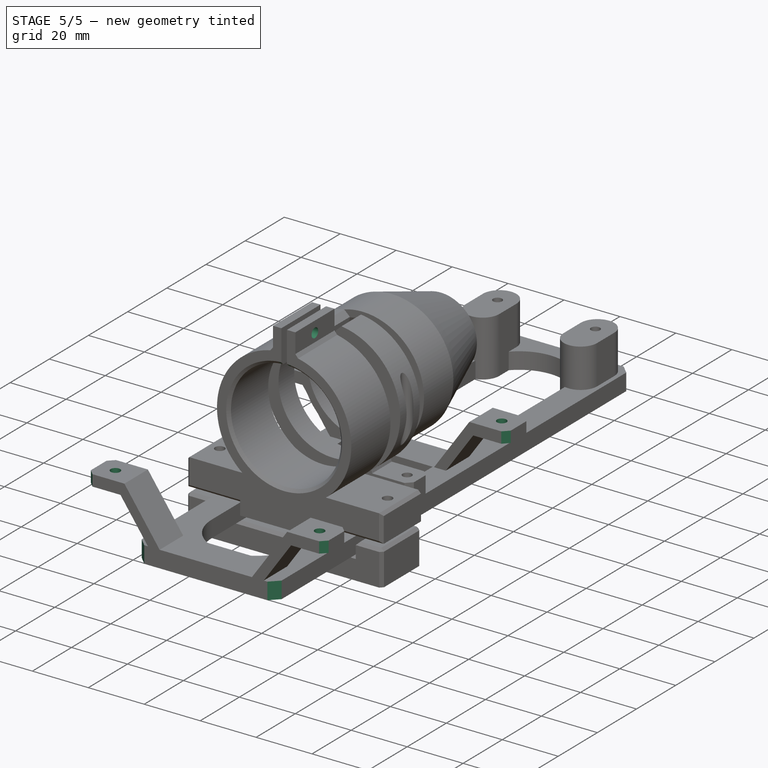
[diagram: stage 5 of 5 — iso view after this stage's code; geometry added in this stage tinted green]
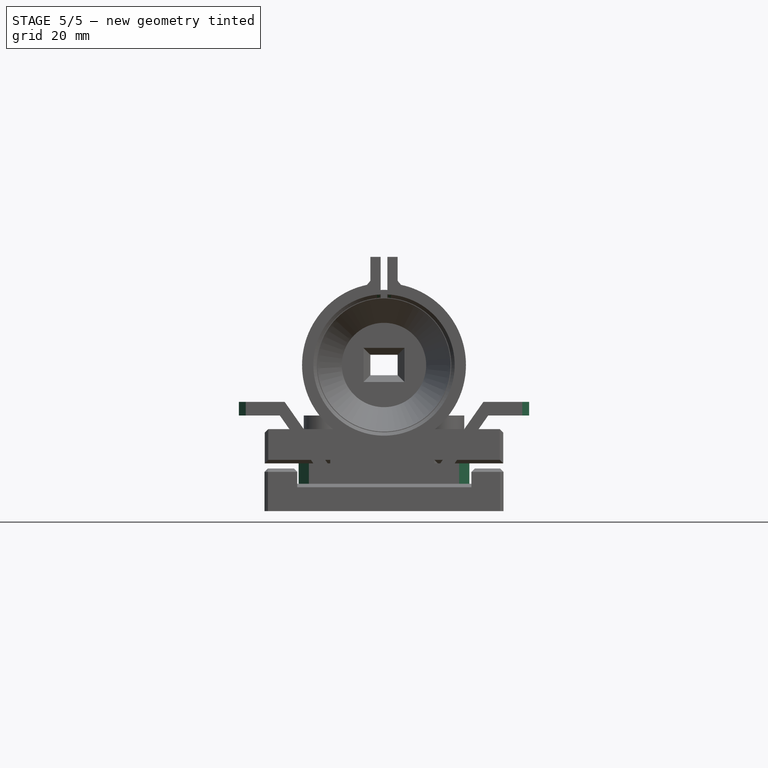
[diagram: stage 5 of 5 — front view after this stage's code; geometry added in this stage tinted green]
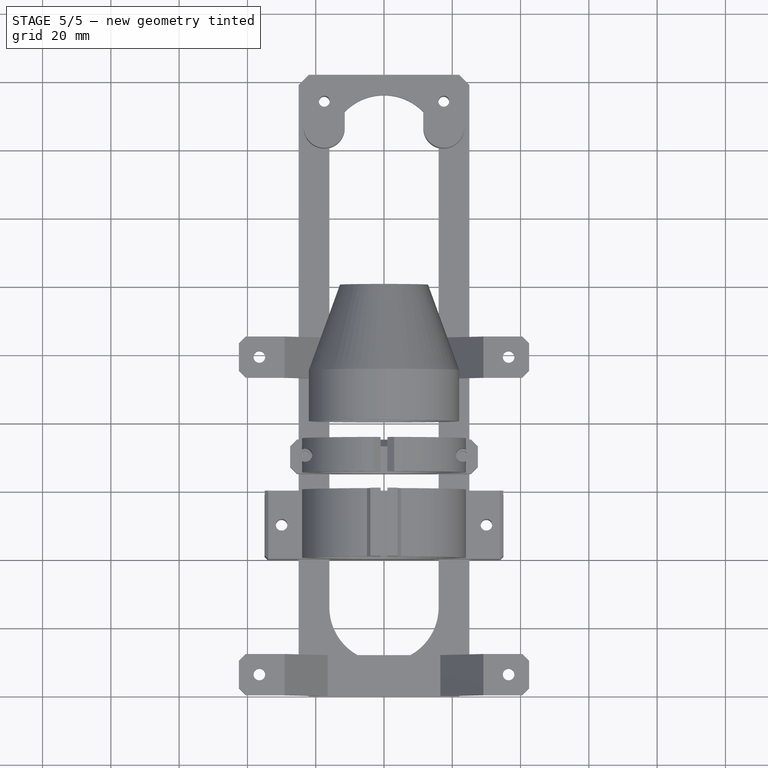
[diagram: stage 5 of 5 — top view after this stage's code; geometry added in this stage tinted green]
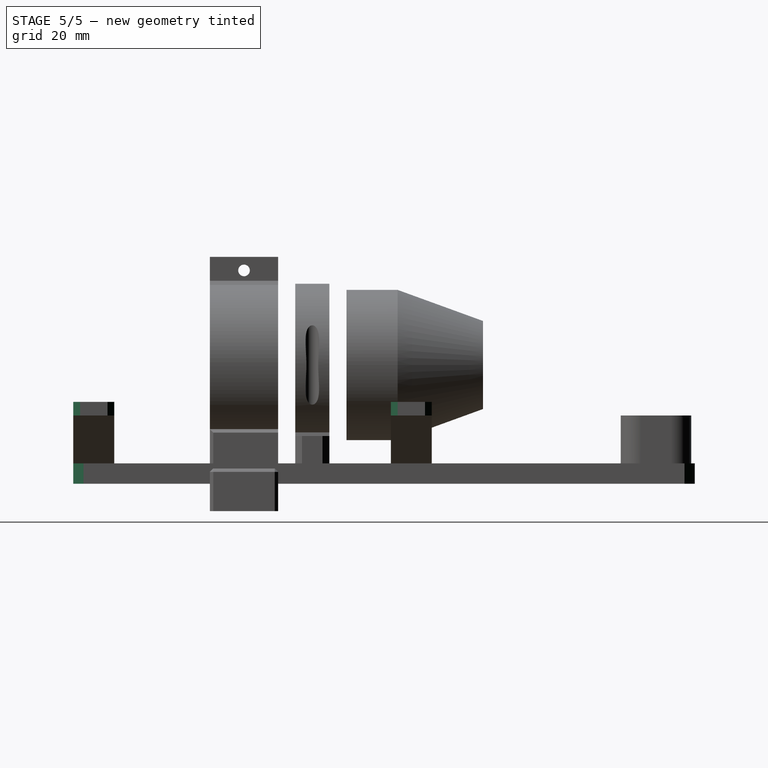
[diagram: stage 5 of 5 — right view after this stage's code; geometry added in this stage tinted green]
FEATURE [Sketcher::SketchObject] Sketch022
  AttachmentOffset = pos=(0,0,-10) rot=(0,0,1;0rad)
  FullyConstrained = true
  MapMode = 5
  Placement = pos=(-10,2.2e-15,-2.2e-15) rot=(0.57735,0.57735,0.57735;2.0944rad)
  Support = -> [YZ_Plane]
  sketch-geometry (1):
    g0: Circle CenterX=-110 CenterY=62.5 CenterZ=0 NormalX=0 NormalY=0 NormalZ=1 AngleXU=0 Radius=1.75
  constraints (3):
    c: Diameter(g0) = 3.5
    c: DistanceX(g0,g-1) = 110
    c: DistanceY(g-1,g0) = 62.5
FEATURE [PartDesign::Hole] Hole002
  AddSubType = 1
  BaseFeature = -> Hole001
  ClaimChildren = false
  CustomThreadClearance = 0
  Depth = 25
  DepthType = 0
  Diameter = 3.4
  DrillForDepth = false
  DrillPoint = 0
  DrillPointAngle = 118
  Fit = 0
  FitJoin = 0
  HoleCutCountersinkAngle = 90
  HoleCutCustomValues = false
  HoleCutDepth = 0
  HoleCutDiameter = 6.1
  HoleCutType = 0
  InnerFit = 0
  InnerFitJoin = 0
  ModelThread = false
  NewSolid = false
  Placement = pos=(0,0,0) rot=(1,0,0;1.5708rad)
  Profile = -> Sketch022
  Reversed = true
  Suppress = false
  Tapered = false
  TaperedAngle = 90
  ThreadClass = 0
  ThreadDepth = 25
  ThreadDepthType = 0
  ThreadDirection = 0
  ThreadFit = 0
  ThreadSize = 9
  ThreadType = 1
  Threaded = false
  UseCustomThreadClearance = false
  _ProfileBasedVersion = 1
FEATURE [PartDesign::Chamfer] Chamfer003
  AddSubType = 0
  Angle = 45
  Base = -> Hole002 [Edge36,Edge35,Edge64,Edge53,Edge50,Edge43,Edge42,Edge29,Edge3,Edge27,Edge28]
  BaseFeature = -> Hole002
  ChamferType = 0
  FlipDirection = false
  NewSolid = false
  Placement = pos=(0,0,0) rot=(1,0,0;1.5708rad)
  Size = 1
  Size2 = 1
  SupportTransform = false
  Suppress = false
FEATURE [PartDesign::Hole] Hole
  AddSubType = 1
  BaseFeature = -> Pad018
  ClaimChildren = false
  CustomThreadClearance = 0
  Depth = 40
  DepthType = 0
  Diameter = 3.4
  DrillForDepth = false
  DrillPoint = 0
  DrillPointAngle = 118
  Fit = 0
  FitJoin = 0
  HoleCutCountersinkAngle = 90
  HoleCutCustomValues = false
  HoleCutDepth = 0
  HoleCutDiameter = 6.1
  HoleCutType = 0
  InnerFit = 0
  InnerFitJoin = 0
  ModelThread = false
  NewSolid = false
  Profile = -> Sketch019
  Reversed = true
  Suppress = false
  Tapered = false
  TaperedAngle = 90
  ThreadClass = 0
  ThreadDepth = 40
  ThreadDepthType = 0
  ThreadDirection = 0
  ThreadFit = 0
  ThreadSize = 9
  ThreadType = 1
  Threaded = false
  UseCustomThreadClearance = false
  _ProfileBasedVersion = 1
FEATURE [PartDesign::Chamfer] Chamfer002
  AddSubType = 0
  Angle = 45
  Base = -> Hole [Edge171,Edge160,Edge166,Edge106,Edge156,Edge149,Edge116,Edge122]
  BaseFeature = -> Hole
  ChamferType = 0
  FlipDirection = false
  NewSolid = false
  Size = 2
  Size2 = 1
  SupportTransform = false
  Suppress = false
FEATURE [PartDesign::Chamfer] Chamfer
  AddSubType = 0
  Angle = 45
  Base = -> Chamfer002 [Edge64,Edge69,Edge67,Edge65]
  BaseFeature = -> Chamfer002
  ChamferType = 0
  FlipDirection = false
  NewSolid = false
  Size = 3
  Size2 = 1
  SupportTransform = false
  Suppress = false
FEATURE [PartDesign::Body] Body002  label="Body-RaspPiAdvCameraMount"
  AutoGroupSolids = false
  ExportMode = 0
  Group = -> [Sketch004,Pad003,Sketch015,Sketch016,Pad010,Pocket,Sketch018,Pad,Pad018,Sketch019,Hole,Chamfer002,Chamfer,Sketch034]
  Origin = -> Origin002
  Tip = -> Chamfer
  _ExportChildren = -> [Pad003,Pad010,Pocket,Pad,Pad018,Hole,Chamfer002,Chamfer]
  _GroupVersion = 1
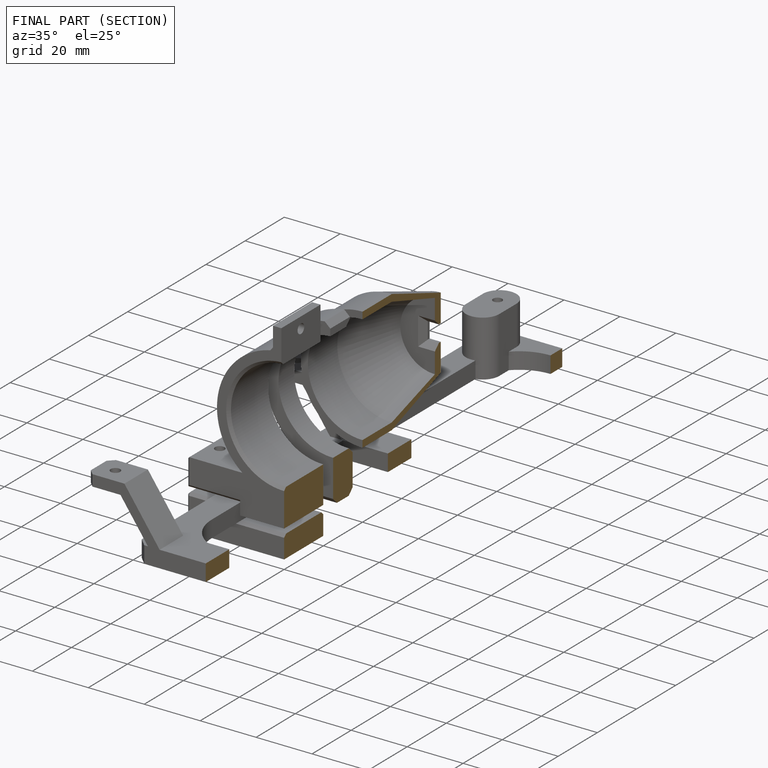
[diagram: finished part — half-section view (interior)]
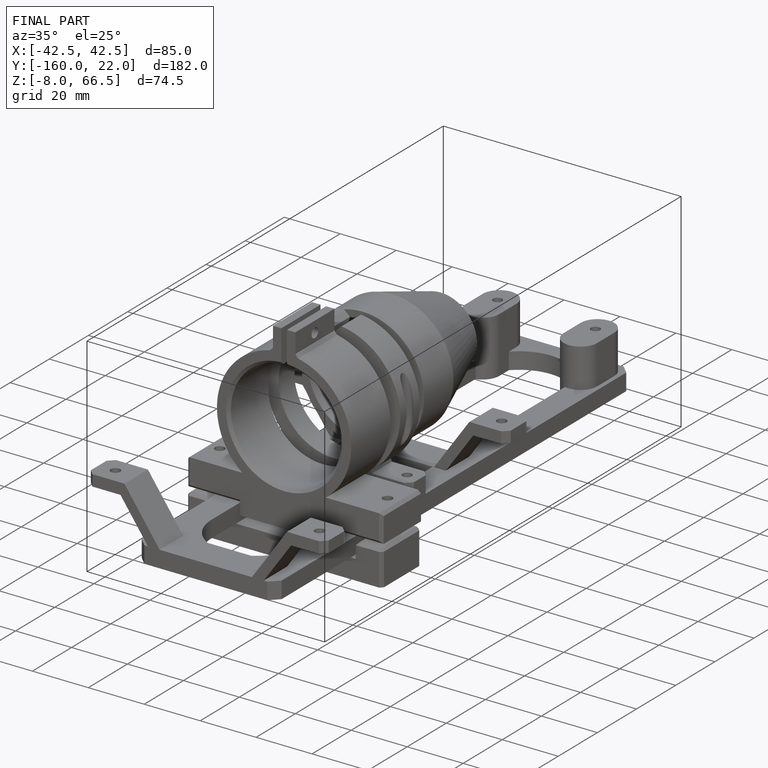
[diagram: finished part — iso view with bounding-box wireframe]
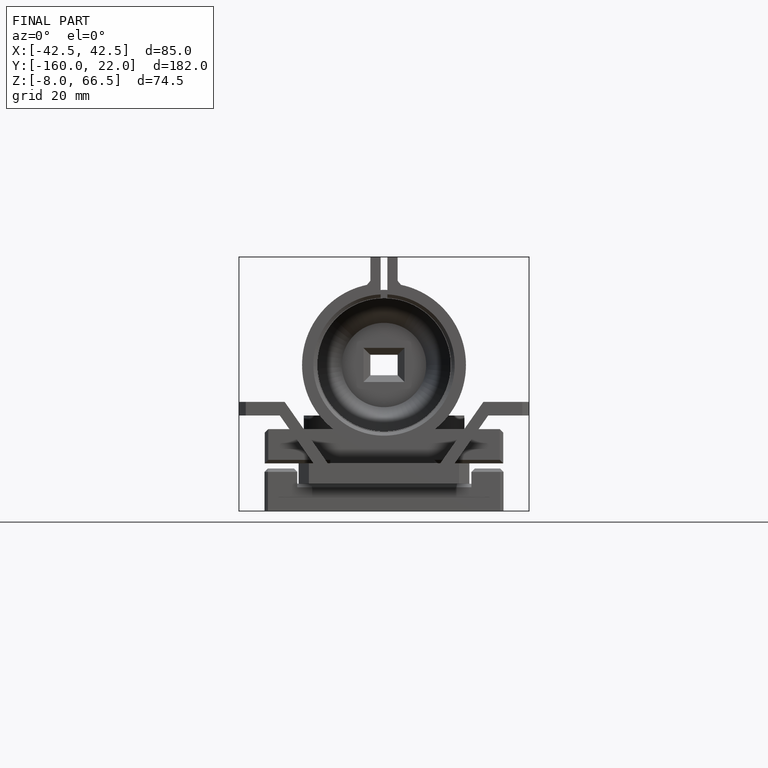
[diagram: finished part — front view with bounding-box wireframe]
